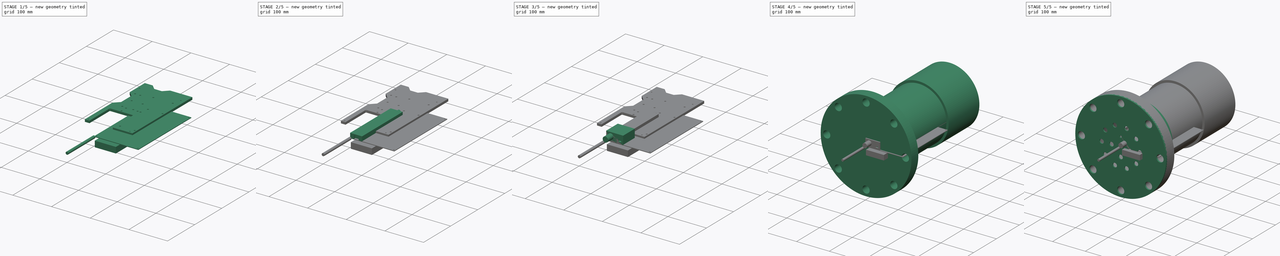
[diagram: build sequence overview — one tinted view per stage of 5, left to right]
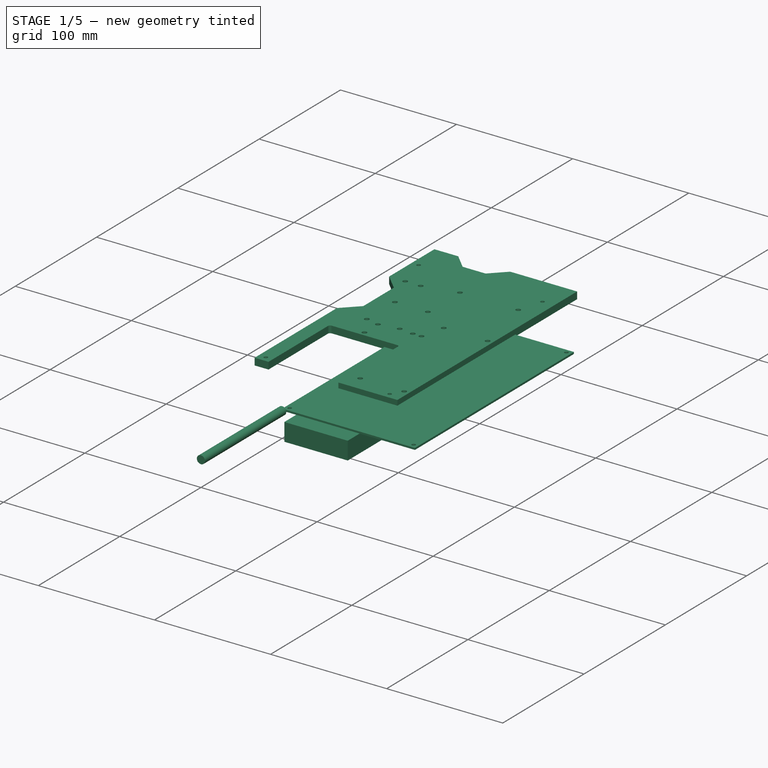
[diagram: stage 1 of 5 — iso view after this stage's code; geometry added in this stage tinted green]
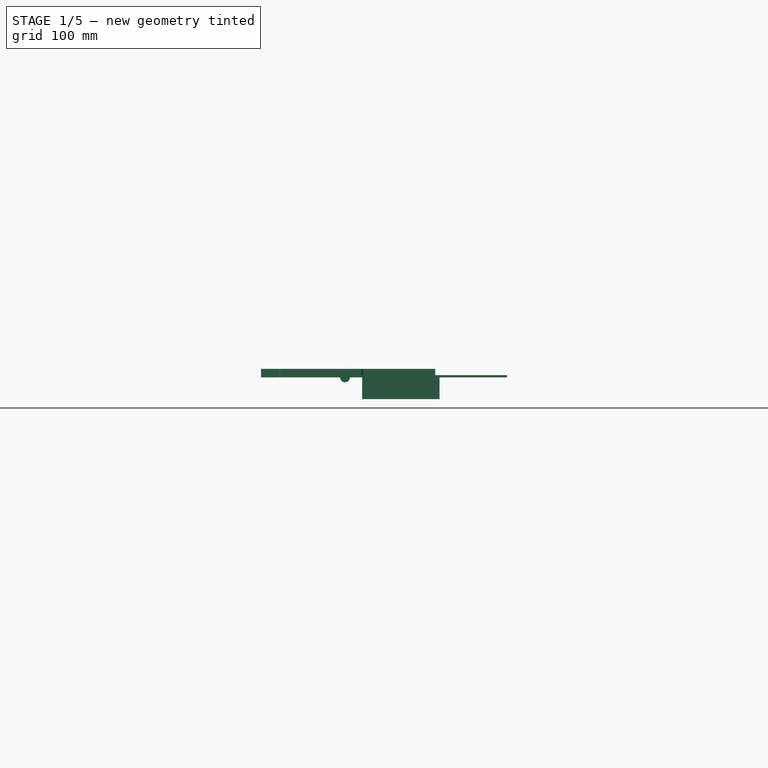
[diagram: stage 1 of 5 — front view after this stage's code; geometry added in this stage tinted green]
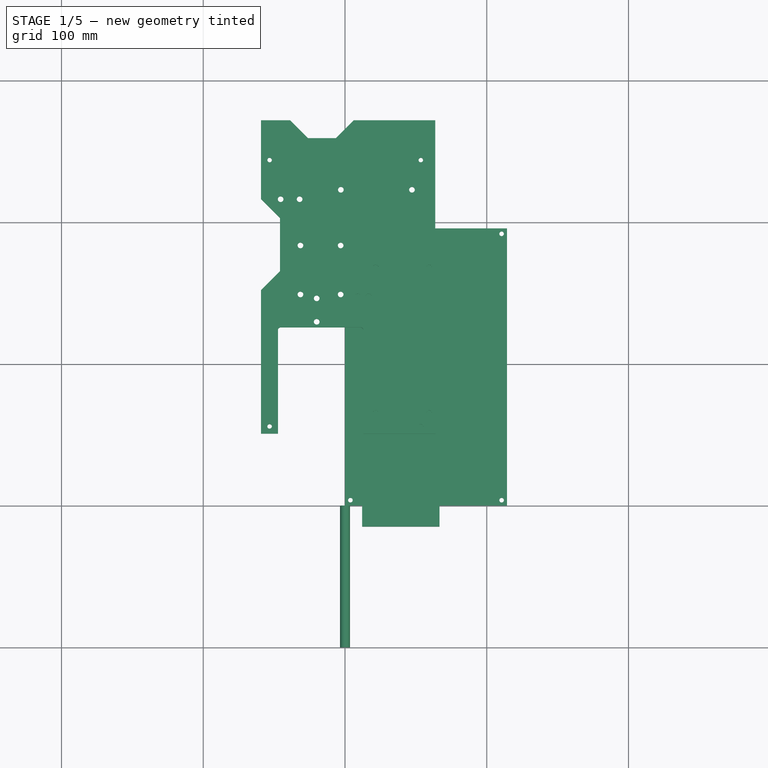
[diagram: stage 1 of 5 — top view after this stage's code; geometry added in this stage tinted green]
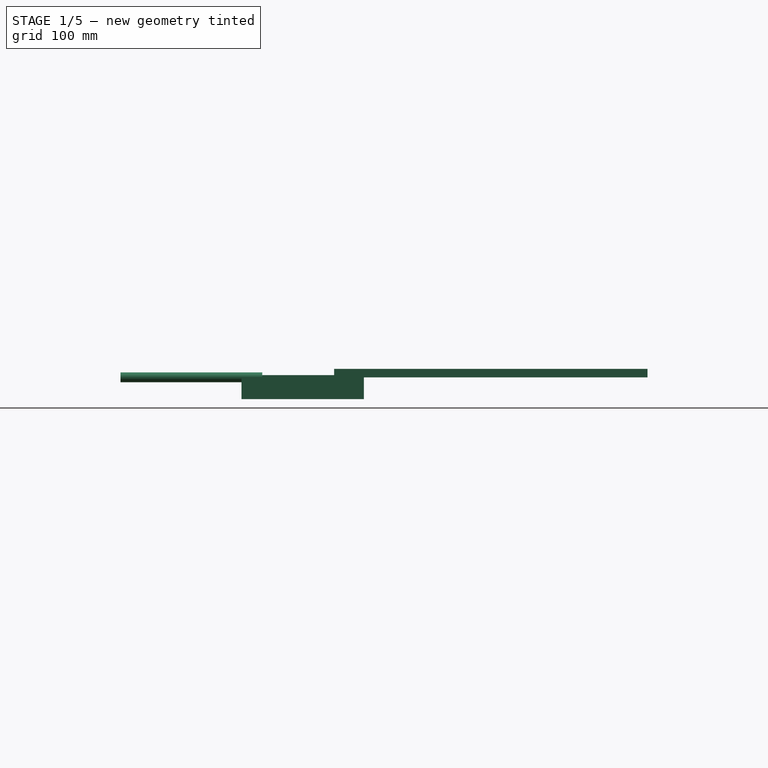
[diagram: stage 1 of 5 — right view after this stage's code; geometry added in this stage tinted green]
FCSTD DOCUMENT  (FreeCAD 0.17R8469 (Git))
Label: drybox_mockup
License: All rights reserved
LicenseURL: http://en.wikipedia.org/wiki/All_rights_reserved
objects: Sketcher::SketchObject×21, PartDesign::Pad×16, PartDesign::Body×12, Part::AttachableObjectPython×10, App::Part×10, PartDesign::Pocket×5, Part::Feature×1, App::DocumentObjectGroup×1
note: 86 computed .brp shape members not serialized (recipe doc carries the construction recipe); baked Part::Feature solids carry a one-line shape summary decoded from their .brp

FEATURE [PartDesign::Body] Body008  label="Transceiver"
  Model = -> [Sketch015,Pad010,Sketch016,Pocket004,Sketch017,Pad011]
  Origin = -> Body008Origin
  Placement = pos=(25,37,-13.2) rot=(0,0,1;0rad)
  Tip = -> Pad011
FEATURE [Sketcher::SketchObject] Sketch018
  MapMode = 5
  Placement = pos=(0,0,0) rot=(1,0,0;1.5708rad)
  Support = -> [XZ_Plane017]
  sketch-geometry (1):
    g0: Circle CenterX=0 CenterY=0 CenterZ=0 NormalX=0 NormalY=0 NormalZ=1 Radius=3.5
  constraints (2):
    c: Coincident(g0,g-1)
    c: Radius(g0) = 3.5
FEATURE [PartDesign::Pad] Pad012
  Length = 100
  Length2 = 100
  Placement = pos=(0,0,0) rot=(1,0,0;1.5708rad)
  Profile = -> Sketch018
  Type = 0
FEATURE [PartDesign::Body] Body009  label="Antenna001"
  Model = -> [Sketch018,Pad012]
  Origin = -> Body009Origin
  Placement = pos=(44,197,-7) rot=(0,0,-1;1.5708rad)
  Tip = -> Pad012
FEATURE [App::Part] Part007  label="Part Wifi"
  Group = -> [Body008,Body009]
  License = CC BY 3.0
  LicenseURL = http://creativecommons.org/licenses/by/3.0/
  Origin = -> Part007Origin
  Placement = pos=(0,-5,14) rot=(0,0,1;0rad)
FEATURE [Sketcher::SketchObject] Sketch019
  MapMode = 5
  Support = -> [XY_Plane019]
  sketch-geometry (12):
    g0: LineSegment StartX=0 StartY=0 StartZ=0 EndX=114.3 EndY=0 EndZ=0
    g1: LineSegment StartX=114.3 StartY=0 StartZ=0 EndX=114.3 EndY=195.58 EndZ=0
    g2: LineSegment StartX=114.3 StartY=195.58 StartZ=0 EndX=0 EndY=195.58 EndZ=0
    g3: LineSegment StartX=0 StartY=195.58 StartZ=0 EndX=0 EndY=0 EndZ=0
    g4: Circle CenterX=3.81 CenterY=3.81 CenterZ=0 NormalX=0 NormalY=0 NormalZ=1 Radius=1.6
    g5: Circle CenterX=3.81 CenterY=191.77 CenterZ=0 NormalX=0 NormalY=0 NormalZ=1 Radius=1.6
    g6: Circle CenterX=110.49 CenterY=191.77 CenterZ=0 NormalX=0 NormalY=0 NormalZ=1 Radius=1.6
    g7: Circle CenterX=110.49 CenterY=3.81 CenterZ=0 NormalX=0 NormalY=0 NormalZ=1 Radius=1.6
    g8: LineSegment [constr] StartX=3.81 StartY=3.81 StartZ=0 EndX=110.49 EndY=3.81 EndZ=0
    g9: LineSegment [constr] StartX=110.49 StartY=3.81 StartZ=0 EndX=110.49 EndY=191.77 EndZ=0
    g10: LineSegment [constr] StartX=110.49 StartY=191.77 StartZ=0 EndX=3.81 EndY=191.77 EndZ=0
    g11: LineSegment [constr] StartX=3.81 StartY=191.77 StartZ=0 EndX=3.81 EndY=3.81 EndZ=0
  constraints (31):
    c: Coincident(g0,g1)
    c: Coincident(g1,g2)
    c: Coincident(g2,g3)
    c: Coincident(g3,g0)
    c: Horizontal(g0)
    c: Horizontal(g2)
    c: Vertical(g1)
    c: Vertical(g3)
    c: Coincident(g0,g-1)
    c: DistanceX(g0,g0) = 114.3
    c: DistanceY(g3,g3) = 195.58
    c: Equal(g4,g5)
    c: Equal(g5,g6)
    c: Equal(g6,g7)
    c: Radius(g5) = 1.6
    c: Coincident(g8,g9)
    c: Coincident(g9,g10)
    c: Coincident(g10,g11)
    c: Coincident(g11,g8)
    c: Horizontal(g8)
    c: Horizontal(g10)
    c: Vertical(g9)
    c: Vertical(g11)
    c: Coincident(g6,g9)
    c: Coincident(g10,g5)
    c: Coincident(g4,g8)
    c: Coincident(g7,g8)
    c: DistanceX(g8,g8) = 106.68
    c: DistanceY(g11,g11) = 187.96
    c: DistanceY(g-1,g4) = 3.81
    c: DistanceX(g-1,g4) = 3.81
FEATURE [PartDesign::Pad] Pad013
  Length = 1.57
  Length2 = 100
  Profile = -> Sketch019
  Type = 0
FEATURE [Sketcher::SketchObject] Sketch020
  MapMode = 5
  Placement = pos=(0,0,0) rot=(1,0,0;3.14159rad)
  Support = -> [Pad013]
  sketch-geometry (4):
    g0: LineSegment StartX=12.06 StartY=14.61 StartZ=0 EndX=66.67 EndY=14.61 EndZ=0
    g1: LineSegment StartX=66.67 StartY=14.61 StartZ=0 EndX=66.67 EndY=-71.75 EndZ=0
    g2: LineSegment StartX=66.67 StartY=-71.75 StartZ=0 EndX=12.06 EndY=-71.75 EndZ=0
    g3: LineSegment StartX=12.06 StartY=-71.75 StartZ=0 EndX=12.06 EndY=14.61 EndZ=0
  constraints (12):
    c: Coincident(g0,g1)
    c: Coincident(g1,g2)
    c: Coincident(g2,g3)
    c: Coincident(g3,g0)
    c: Horizontal(g0)
    c: Horizontal(g2)
    c: Vertical(g1)
    c: Vertical(g3)
    c: DistanceX(g-1,g0) = 12.06
    c: DistanceX(g0,g0) = 54.61
    c: DistanceY(g1,g1) = 86.36
    c: DistanceY(g-1,g0) = 14.61
FEATURE [PartDesign::Pad] Pad014
  BaseFeature = -> Pad013
  Length = 15.4
  Length2 = 100
  Profile = -> Sketch020
  Type = 0
FEATURE [PartDesign::Body] Body010
  Model = -> [Sketch019,Pad013,Sketch020,Pad014]
  Origin = -> Body010Origin
  Placement = pos=(-57,52,11) rot=(0,0,1;0rad)
  Tip = -> Pad014
FEATURE [App::Part] Part008  label="Part Control board"
  Group = -> [Body010]
  License = CC BY 3.0
  LicenseURL = http://creativecommons.org/licenses/by/3.0/
  Origin = -> Part008Origin
  Placement = pos=(0,-5,14) rot=(0,0,1;0rad)
FEATURE [Sketcher::SketchObject] Sketch021
  MapMode = 5
  Support = -> [XY_Plane021]
  sketch-geometry (54):
    g0: LineSegment StartX=63.7 StartY=271.81 StartZ=0 EndX=63.7 EndY=50.68 EndZ=0
    g1: Circle CenterX=53.49 CenterY=55.81 CenterZ=0 NormalX=0 NormalY=0 NormalZ=1 Radius=1.6
    g2: Circle CenterX=53.49 CenterY=243.77 CenterZ=0 NormalX=0 NormalY=0 NormalZ=1 Radius=1.6
    g3: Circle CenterX=-53.19 CenterY=243.77 CenterZ=0 NormalX=0 NormalY=0 NormalZ=1 Radius=1.6
    g4: Circle CenterX=-53.19 CenterY=55.81 CenterZ=0 NormalX=0 NormalY=0 NormalZ=1 Radius=1.6
    g5: LineSegment [constr] StartX=-53.19 StartY=243.77 StartZ=0 EndX=53.49 EndY=243.77 EndZ=0
    g6: LineSegment [constr] StartX=53.49 StartY=243.77 StartZ=0 EndX=53.49 EndY=55.81 EndZ=0
    g7: LineSegment [constr] StartX=53.49 StartY=55.81 StartZ=0 EndX=-53.19 EndY=55.81 EndZ=0
    g8: LineSegment [constr] StartX=-53.19 StartY=55.81 StartZ=0 EndX=-53.19 EndY=243.77 EndZ=0
    g9: LineSegment StartX=-59.26 StartY=50.68 StartZ=0 EndX=-47.2873 EndY=50.68 EndZ=0
    g10: LineSegment StartX=-47.2873 StartY=50.68 StartZ=0 EndX=-47.2873 EndY=123.707 EndZ=0
    g11: LineSegment StartX=-45.2873 StartY=125.707 StartZ=0 EndX=10.9048 EndY=125.707 EndZ=0
    g12: LineSegment StartX=12.9048 StartY=123.707 StartZ=0 EndX=12.9048 EndY=50.68 EndZ=0
    g13: LineSegment StartX=12.9048 StartY=50.68 StartZ=0 EndX=63.7 EndY=50.68 EndZ=0
    g14: Circle CenterX=21.5925 CenterY=167.877 CenterZ=0 NormalX=0 NormalY=0 NormalZ=1 Radius=2
    g15: Circle CenterX=21.5925 CenterY=65.1614 CenterZ=0 NormalX=0 NormalY=0 NormalZ=1 Radius=2
    g16: Circle CenterX=59.4124 CenterY=167.877 CenterZ=0 NormalX=0 NormalY=0 NormalZ=1 Radius=2
    g17: Circle CenterX=59.4124 CenterY=65.1614 CenterZ=0 NormalX=0 NormalY=0 NormalZ=1 Radius=2
    g18: LineSegment [constr] StartX=21.5925 StartY=167.877 StartZ=0 EndX=59.4124 EndY=167.877 EndZ=0
    g19: LineSegment [constr] StartX=59.4124 StartY=167.877 StartZ=0 EndX=59.4124 EndY=65.1614 EndZ=0
    g20: LineSegment [constr] StartX=59.4124 StartY=65.1614 StartZ=0 EndX=21.5925 EndY=65.1614 EndZ=0
    g21: LineSegment [constr] StartX=21.5925 StartY=65.1614 StartZ=0 EndX=21.5925 EndY=167.877 EndZ=0
    g22: LineSegment [constr] StartX=-31.437 StartY=183.512 StartZ=0 EndX=-3.06064 EndY=183.512 EndZ=0
    g23: LineSegment [constr] StartX=-3.06064 StartY=183.512 StartZ=0 EndX=-3.06064 EndY=148.942 EndZ=0
    g24: LineSegment [constr] StartX=-3.06064 StartY=148.942 StartZ=0 EndX=-31.437 EndY=148.942 EndZ=0
    g25: LineSegment [constr] StartX=-31.437 StartY=148.942 StartZ=0 EndX=-31.437 EndY=183.512 EndZ=0
    g26: Circle CenterX=-31.437 CenterY=183.512 CenterZ=0 NormalX=0 NormalY=0 NormalZ=1 Radius=2
    g27: Circle CenterX=-3.06064 CenterY=183.512 CenterZ=0 NormalX=0 NormalY=0 NormalZ=1 Radius=2
    g28: Circle CenterX=-3.06064 CenterY=148.942 CenterZ=0 NormalX=0 NormalY=0 NormalZ=1 Radius=2
    g29: Circle CenterX=-31.437 CenterY=148.942 CenterZ=0 NormalX=0 NormalY=0 NormalZ=1 Radius=2
    g30: LineSegment [constr] StartX=-2.92612 StartY=222.808 StartZ=0 EndX=47.258 EndY=222.808 EndZ=0
    g31: Circle CenterX=-2.92612 CenterY=222.808 CenterZ=0 NormalX=0 NormalY=0 NormalZ=1 Radius=2
    g32: Circle CenterX=47.258 CenterY=222.808 CenterZ=0 NormalX=0 NormalY=0 NormalZ=1 Radius=2
    g33: LineSegment [constr] StartX=-19.9631 StartY=146.166 StartZ=0 EndX=-19.9631 EndY=129.655 EndZ=0
    g34: Circle CenterX=-19.9631 CenterY=146.166 CenterZ=0 NormalX=0 NormalY=0 NormalZ=1 Radius=2
    g35: Circle CenterX=-19.9631 CenterY=129.655 CenterZ=0 NormalX=0 NormalY=0 NormalZ=1 Radius=2
    g36: Circle CenterX=9.14011 CenterY=147.607 CenterZ=0 NormalX=0 NormalY=0 NormalZ=1 Radius=2
    g37: LineSegment [constr] StartX=9.14011 StartY=147.607 StartZ=0 EndX=16.5748 EndY=147.607 EndZ=0
    g38: Circle CenterX=16.5748 CenterY=147.607 CenterZ=0 NormalX=0 NormalY=0 NormalZ=1 Radius=2
    g39: LineSegment [constr] StartX=-45.4125 StartY=216.132 StartZ=0 EndX=-32.0166 EndY=216.132 EndZ=0
    g40: Circle CenterX=-45.4125 CenterY=216.132 CenterZ=0 NormalX=0 NormalY=0 NormalZ=1 Radius=2
    g41: Circle CenterX=-32.0166 CenterY=216.132 CenterZ=0 NormalX=0 NormalY=0 NormalZ=1 Radius=2
    g42: LineSegment StartX=-59.26 StartY=216.21 StartZ=0 EndX=-45.8775 EndY=202.827 EndZ=0
    g43: LineSegment StartX=-45.8775 StartY=202.827 StartZ=0 EndX=-45.8775 EndY=165.336 EndZ=0
    g44: LineSegment StartX=-45.8775 StartY=165.336 StartZ=0 EndX=-59.26 EndY=151.953 EndZ=0
    g45: LineSegment StartX=-59.26 StartY=271.81 StartZ=0 EndX=-59.26 EndY=216.21 EndZ=0
    g46: LineSegment StartX=-59.26 StartY=50.68 StartZ=0 EndX=-59.26 EndY=151.953 EndZ=0
    g47: ArcOfCircle CenterX=-45.2873 CenterY=123.707 CenterZ=0 NormalX=0 NormalY=0 NormalZ=1 Radius=2 StartAngle=1.5708 EndAngle=3.14159
    g48: ArcOfCircle CenterX=10.9048 CenterY=123.707 CenterZ=0 NormalX=0 NormalY=0 NormalZ=1 Radius=2 StartAngle=0 EndAngle=1.5708
    g49: LineSegment StartX=-59.26 StartY=271.81 StartZ=0 EndX=-38.7055 EndY=271.81 EndZ=0
    g50: LineSegment StartX=-38.7055 StartY=271.81 StartZ=0 EndX=-26.1599 EndY=259.264 EndZ=0
    g51: LineSegment StartX=-26.1599 StartY=259.264 StartZ=0 EndX=-6.43703 EndY=259.264 EndZ=0
    g52: LineSegment StartX=-6.43703 StartY=259.264 StartZ=0 EndX=6.10856 EndY=271.81 EndZ=0
    g53: LineSegment StartX=6.10856 StartY=271.81 StartZ=0 EndX=63.7 EndY=271.81 EndZ=0
  constraints (115):
    c: Vertical(g0)
    c: Coincident(g5,g6)
    c: Coincident(g6,g7)
    c: Coincident(g7,g8)
    c: Coincident(g8,g5)
    c: Horizontal(g5)
    c: Horizontal(g7)
    c: Vertical(g6)
    c: Vertical(g8)
    c: Coincident(g5,g3)
    c: Coincident(g5,g2)
    c: Coincident(g6,g1)
    c: Coincident(g4,g7)
    c: Equal(g3,g2)
    c: Equal(g2,g1)
    c: Equal(g1,g4)
    c: Radius(g4) = 1.6
    c: DistanceX(g7,g7) = 106.68
    c: DistanceY(g8,g8) = 187.96
    c: Horizontal(g9)
    c: Coincident(g9,g10)
    c: Vertical(g10)
    c: Horizontal(g11)
    c: Vertical(g12)
    c: Coincident(g12,g13)
    c: Coincident(g13,g0)
    c: Horizontal(g13)
    c: PointOnObject(g12,g9)
    c: DistanceY(g-1,g1) = 55.81
    c: DistanceX(g-1,g1) = 53.49
    c: Coincident(g18,g19)
    c: Coincident(g19,g20)
    c: Coincident(g20,g21)
    c: Coincident(g21,g18)
    c: Horizontal(g18)
    c: Horizontal(g20)
    c: Vertical(g19)
    c: Vertical(g21)
    c: Coincident(g19,g17)
    c: Coincident(g15,g20)
    c: Coincident(g14,g18)
    c: Coincident(g16,g18)
    c: Equal(g14,g15)
    c: Equal(g15,g16)
    c: Equal(g16,g17)
    c: Radius(g16) = 2
    c: Coincident(g22,g23)
    c: Coincident(g23,g24)
    c: Coincident(g24,g25)
    c: Coincident(g25,g22)
    c: Horizontal(g22)
    c: Horizontal(g24)
    c: Vertical(g23)
    c: Vertical(g25)
    c: Coincident(g26,g22)
    c: Coincident(g27,g22)
    c: Coincident(g28,g23)
    c: Coincident(g29,g24)
    c: Equal(g29,g28)
    c: Equal(g28,g27)
    c: Equal(g27,g26)
    c: Radius(g26) = 2
    c: Horizontal(g30)
    c: Coincident(g31,g30)
    c: Coincident(g32,g30)
    c: Equal(g32,g31)
    c: Radius(g31) = 2
    c: Vertical(g33)
    c: Coincident(g34,g33)
    c: Coincident(g35,g33)
    c: Equal(g35,g34)
    c: Radius(g35) = 2
    c: Coincident(g37,g36)
    c: Coincident(g38,g37)
    c: Equal(g38,g36)
    c: Radius(g36) = 2
    c: Horizontal(g37)
    c: Horizontal(g39)
    c: Coincident(g40,g39)
    c: Coincident(g41,g39)
    c: Equal(g40,g41)
    c: Radius(g40) = 2
    c: Coincident(g42,g43)
    c: Vertical(g43)
    c: Coincident(g43,g44)
    c: Angle(g43,g44) = 2.35619
    c: Angle(g42,g43) = 2.35619
    c: Vertical(g45)
    c: Coincident(g46,g9)
    c: Vertical(g46)
    c: Coincident(g44,g46)
    c: Coincident(g42,g45)
    c: PointOnObject(g44,g45)
    c: Tangent(g10,g47) = 1.5708
    c: Tangent(g11,g47) = 1.5708
    c: Tangent(g11,g48) = 1.5708
    c: Tangent(g12,g48) = 1.5708
    c: Equal(g48,g47)
    c: Radius(g47) = 2
    c: DistanceX(g9,g0) = 122.96
    c: DistanceX(g9,g-1) = 59.26
    c: Coincident(g45,g49)
    c: Horizontal(g49)
    c: Coincident(g49,g50)
    c: Coincident(g50,g51)
    c: Horizontal(g51)
    c: Coincident(g51,g52)
    c: Coincident(g52,g53)
    c: Coincident(g53,g0)
    c: Horizontal(g53)
    c: PointOnObject(g52,g49)
    c: Angle(g51,g50) = 2.35619
    c: Angle(g52,g51) = 2.35619
    c: DistanceY(g9,g45) = 221.13
    c: DistanceY(g-1,g9) = 50.68
FEATURE [PartDesign::Pad] Pad015
  Length = 6
  Length2 = 100
  Profile = -> Sketch021
  Type = 0
FEATURE [PartDesign::Body] Body011
  Model = -> [Sketch021,Pad015]
  Origin = -> Body011Origin
  Tip = -> Pad015
FEATURE [App::Part] Part009  label="Part Carrier plate"
  Group = -> [Body011]
  License = CC BY 3.0
  LicenseURL = http://creativecommons.org/licenses/by/3.0/
  Origin = -> Part009Origin
  Placement = pos=(0,-5,14) rot=(0,0,1;0rad)
FEATURE [App::DocumentObjectGroup] Group
FEATURE [App::Part] Part005  label="Part AIS receiver"
  Group = -> [Body005,Group]
  License = CC BY 3.0
  LicenseURL = http://creativecommons.org/licenses/by/3.0/
  Origin = -> Part005Origin
  Placement = pos=(0,-5,14) rot=(0,0,1;0rad)
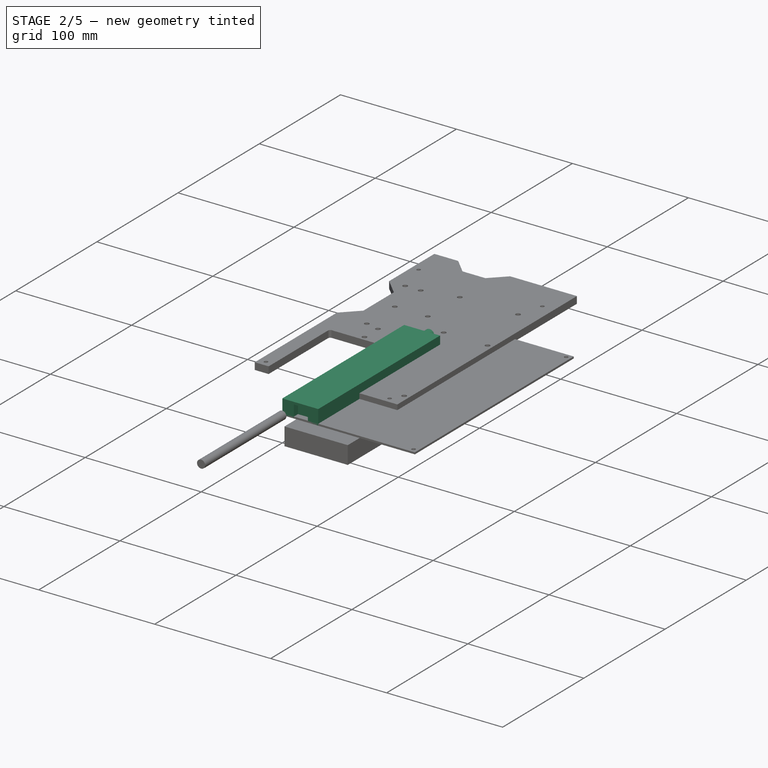
[diagram: stage 2 of 5 — iso view after this stage's code; geometry added in this stage tinted green]
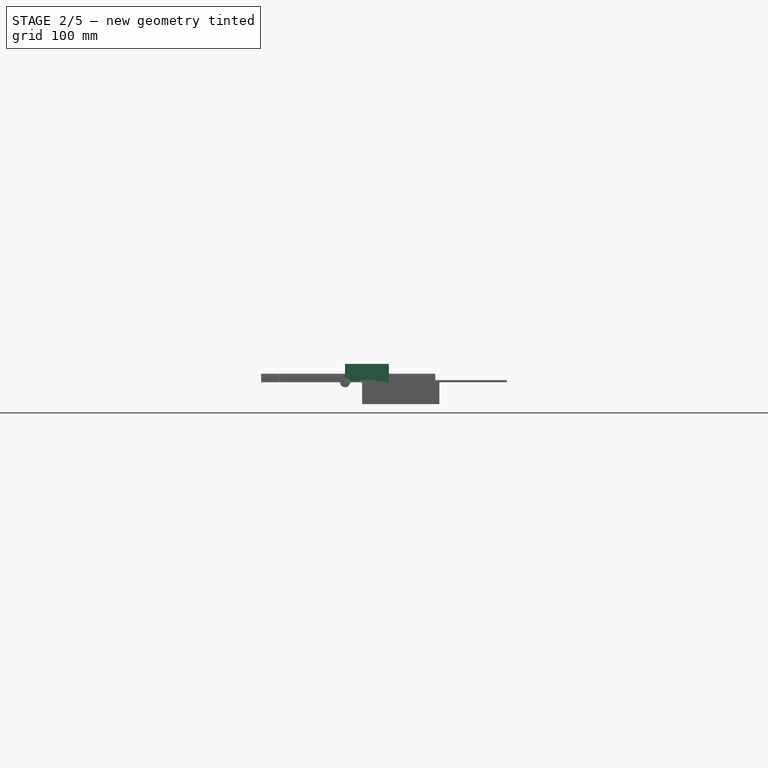
[diagram: stage 2 of 5 — front view after this stage's code; geometry added in this stage tinted green]
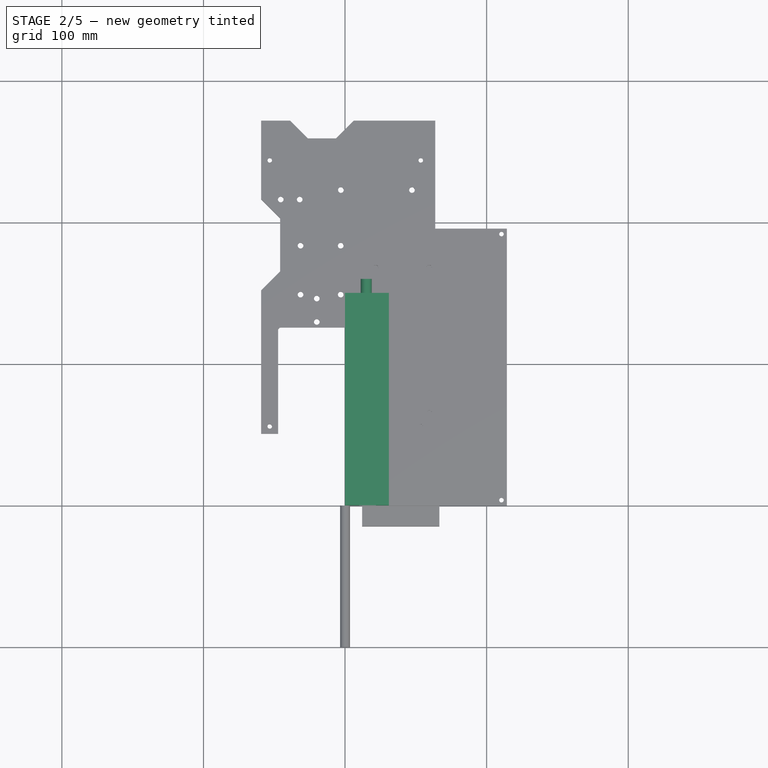
[diagram: stage 2 of 5 — top view after this stage's code; geometry added in this stage tinted green]
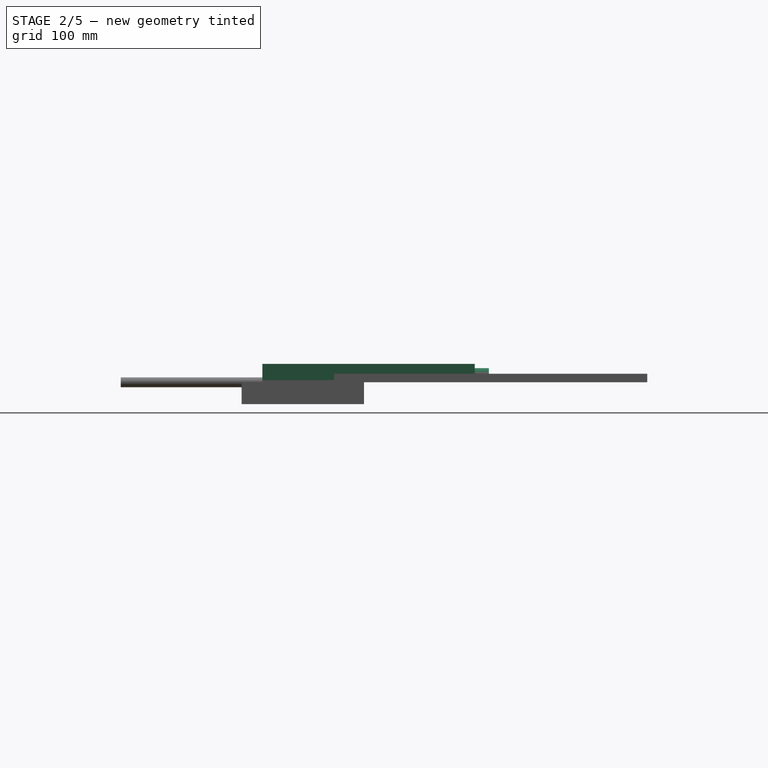
[diagram: stage 2 of 5 — right view after this stage's code; geometry added in this stage tinted green]
FEATURE [PartDesign::Body] Body006  label="Receiver"
  Model = -> [Sketch012,Pad008,Sketch013,Pocket003]
  Origin = -> Body006Origin
  Placement = pos=(5,153,-14.2) rot=(0,0,1;1.5708rad)
  Tip = -> Pocket003
FEATURE [Sketcher::SketchObject] Sketch014
  MapMode = 5
  Support = -> [XY_Plane014]
  sketch-geometry (4):
    g0: LineSegment StartX=0 StartY=0 StartZ=0 EndX=10 EndY=0 EndZ=0
    g1: LineSegment StartX=10 StartY=0 StartZ=0 EndX=10 EndY=52.5 EndZ=0
    g2: LineSegment StartX=10 StartY=52.5 StartZ=0 EndX=0 EndY=52.5 EndZ=0
    g3: LineSegment StartX=0 StartY=52.5 StartZ=0 EndX=0 EndY=0 EndZ=0
  constraints (11):
    c: Coincident(g0,g1)
    c: Coincident(g1,g2)
    c: Coincident(g2,g3)
    c: Coincident(g3,g0)
    c: Horizontal(g0)
    c: Horizontal(g2)
    c: Vertical(g1)
    c: Vertical(g3)
    c: Coincident(g0,g-1)
    c: DistanceY(g1,g1) = 52.5
    c: DistanceX(g0,g0) = 10
FEATURE [PartDesign::Pad] Pad009
  Length = 6
  Length2 = 100
  Profile = -> Sketch014
  Type = 0
FEATURE [PartDesign::Body] Body007  label="Antenna"
  Model = -> [Sketch014,Pad009]
  Origin = -> Body007Origin
  Placement = pos=(-3,133,-7.2) rot=(0,0,1;1.5708rad)
  Tip = -> Pad009
FEATURE [App::Part] Part006  label="Part RC receiver"
  Group = -> [Body006,Body007]
  License = CC BY 3.0
  LicenseURL = http://creativecommons.org/licenses/by/3.0/
  Origin = -> Part006Origin
  Placement = pos=(0,-5,14) rot=(0,0,1;0rad)
FEATURE [Sketcher::SketchObject] Sketch015
  MapMode = 5
  Support = -> [XY_Plane016]
  sketch-geometry (4):
    g0: LineSegment StartX=0 StartY=0 StartZ=0 EndX=31 EndY=0 EndZ=0
    g1: LineSegment StartX=31 StartY=0 StartZ=0 EndX=31 EndY=150 EndZ=0
    g2: LineSegment StartX=31 StartY=150 StartZ=0 EndX=0 EndY=150 EndZ=0
    g3: LineSegment StartX=0 StartY=150 StartZ=0 EndX=0 EndY=0 EndZ=0
  constraints (11):
    c: Coincident(g0,g1)
    c: Coincident(g1,g2)
    c: Coincident(g2,g3)
    c: Coincident(g3,g0)
    c: Horizontal(g0)
    c: Horizontal(g2)
    c: Vertical(g1)
    c: Vertical(g3)
    c: Coincident(g0,g-1)
    c: DistanceY(g3,g3) = 150
    c: DistanceX(g0,g0) = 31
FEATURE [PartDesign::Pad] Pad010
  Length = 13
  Length2 = 100
  Profile = -> Sketch015
  Type = 0
FEATURE [Sketcher::SketchObject] Sketch016
  MapMode = 5
  Placement = pos=(0,0,0) rot=(1,0,0;1.5708rad)
  Support = -> [Pad010]
  sketch-geometry (4):
    g0: LineSegment StartX=10 StartY=11 StartZ=0 EndX=22 EndY=11 EndZ=0
    g1: LineSegment StartX=22 StartY=11 StartZ=0 EndX=22 EndY=1 EndZ=0
    g2: LineSegment StartX=22 StartY=1 StartZ=0 EndX=10 EndY=1 EndZ=0
    g3: LineSegment StartX=10 StartY=1 StartZ=0 EndX=10 EndY=11 EndZ=0
  constraints (12):
    c: Coincident(g0,g1)
    c: Coincident(g1,g2)
    c: Coincident(g2,g3)
    c: Coincident(g3,g0)
    c: Horizontal(g0)
    c: Horizontal(g2)
    c: Vertical(g1)
    c: Vertical(g3)
    c: DistanceX(g0,g0) = 12
    c: DistanceY(g3,g3) = 10
    c: DistanceX(g-1,g2) = 10
    c: DistanceY(g-1,g2) = 1
FEATURE [PartDesign::Pocket] Pocket004
  BaseFeature = -> Pad010
  Length = 5
  Profile = -> Sketch016
  Type = 0
FEATURE [Sketcher::SketchObject] Sketch017
  MapMode = 5
  Placement = pos=(0,150,0) rot=(0,0.707107,0.707107;3.14159rad)
  Support = -> [Pocket004]
  sketch-geometry (1):
    g0: Circle CenterX=-15 CenterY=6 CenterZ=0 NormalX=0 NormalY=0 NormalZ=1 Radius=4
  constraints (3):
    c: DistanceX(g0,g-1) = 15
    c: DistanceY(g-1,g0) = 6
    c: Radius(g0) = 4
FEATURE [PartDesign::Pad] Pad011
  BaseFeature = -> Pocket004
  Length = 10
  Length2 = 100
  Profile = -> Sketch017
  Type = 0
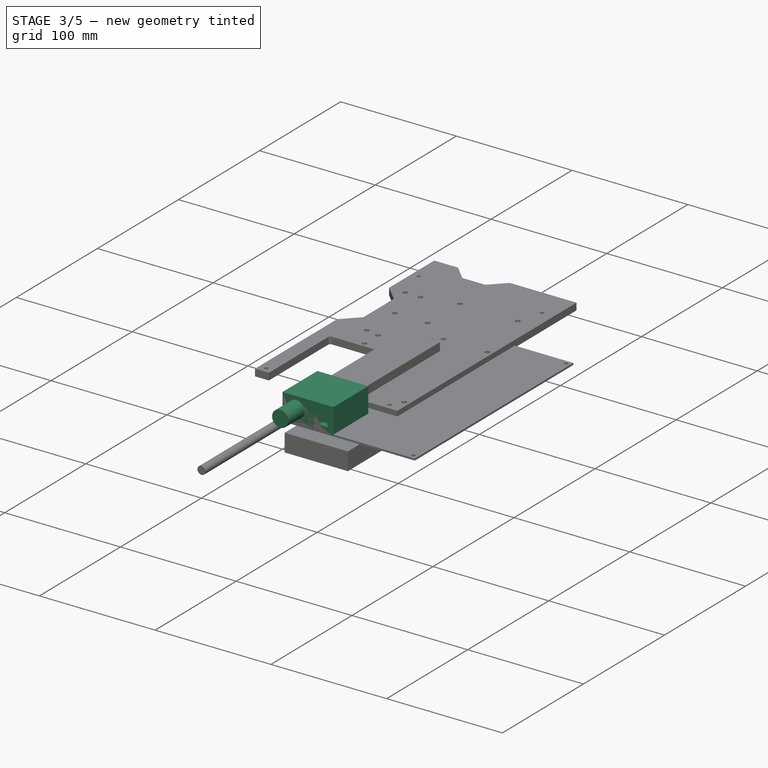
[diagram: stage 3 of 5 — iso view after this stage's code; geometry added in this stage tinted green]
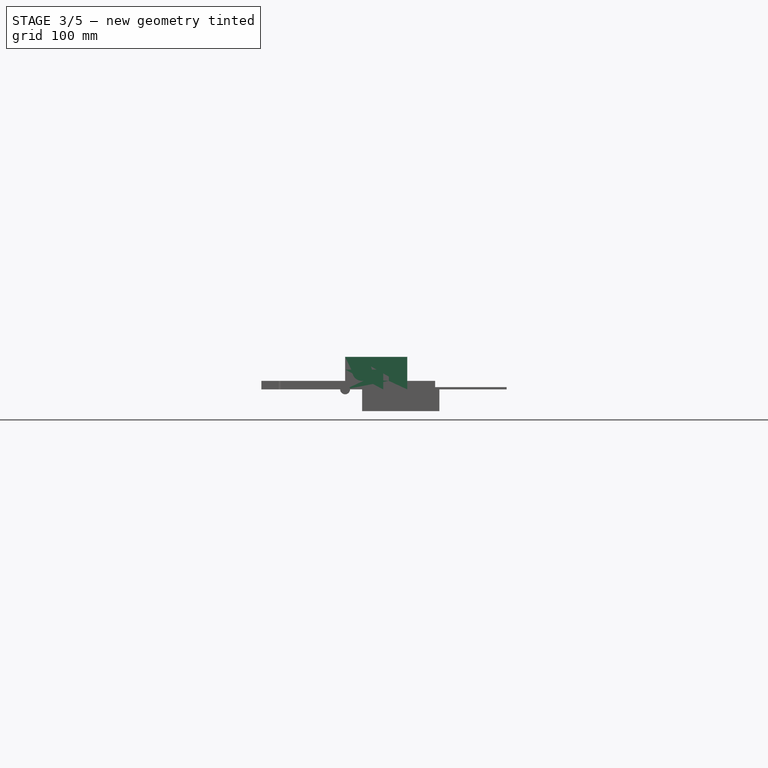
[diagram: stage 3 of 5 — front view after this stage's code; geometry added in this stage tinted green]
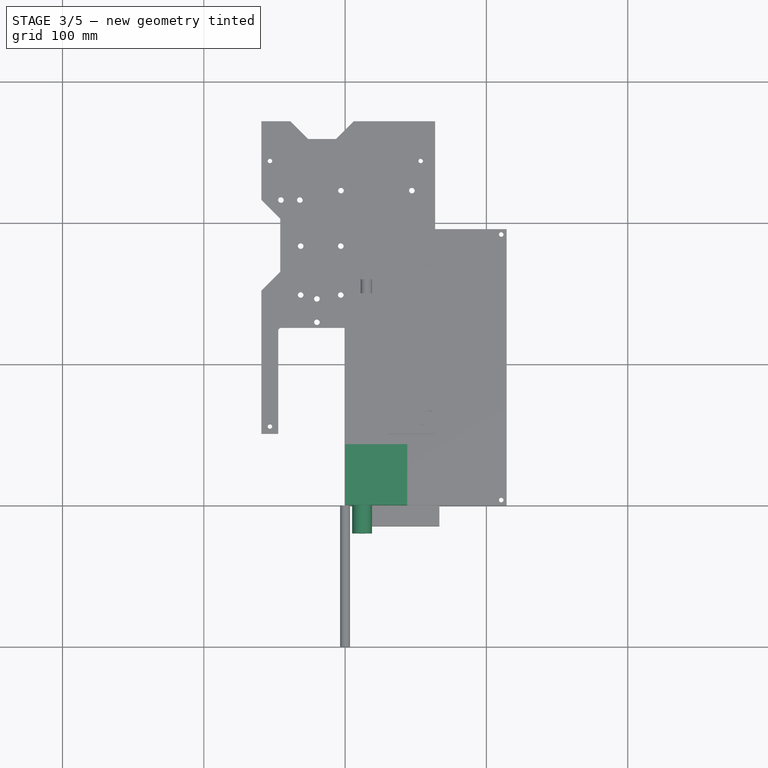
[diagram: stage 3 of 5 — top view after this stage's code; geometry added in this stage tinted green]
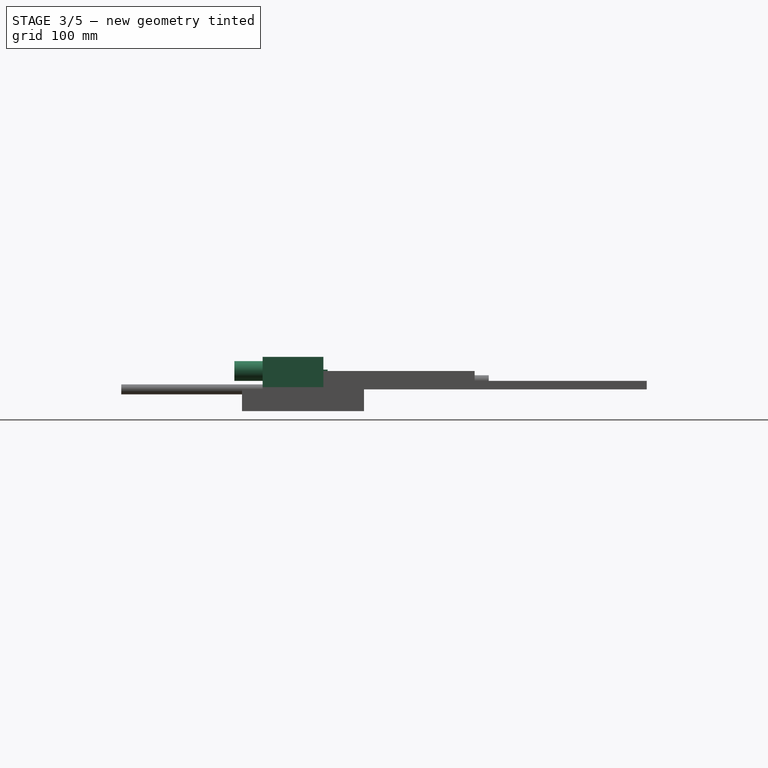
[diagram: stage 3 of 5 — right view after this stage's code; geometry added in this stage tinted green]
FEATURE [PartDesign::Body] Body004
  Model = -> [Sketch007,Pad005,Sketch008,Pocket001]
  Origin = -> Body004Origin
  Tip = -> Pocket001
FEATURE [App::Part] Part004  label="Part End cap"
  Group = -> [Body004]
  License = CC BY 3.0
  LicenseURL = http://creativecommons.org/licenses/by/3.0/
  Origin = -> Part004Origin
  Placement = pos=(0,321,0) rot=(0,0,1;3.14159rad)
FEATURE [Sketcher::SketchObject] Sketch009
  MapMode = 5
  Support = -> [XY_Plane011]
  sketch-geometry (4):
    g0: LineSegment StartX=0 StartY=0 StartZ=0 EndX=44 EndY=0 EndZ=0
    g1: LineSegment StartX=44 StartY=0 StartZ=0 EndX=44 EndY=43 EndZ=0
    g2: LineSegment StartX=44 StartY=43 StartZ=0 EndX=0 EndY=43 EndZ=0
    g3: LineSegment StartX=0 StartY=43 StartZ=0 EndX=0 EndY=0 EndZ=0
  constraints (11):
    c: Coincident(g0,g1)
    c: Coincident(g1,g2)
    c: Coincident(g2,g3)
    c: Coincident(g3,g0)
    c: Horizontal(g0)
    c: Horizontal(g2)
    c: Vertical(g1)
    c: Vertical(g3)
    c: Coincident(g0,g-1)
    c: DistanceX(g2,g2) = 44
    c: DistanceY(g3,g3) = 43
FEATURE [PartDesign::Pad] Pad006
  Length = 23
  Length2 = 100
  Profile = -> Sketch009
  Type = 0
FEATURE [Sketcher::SketchObject] Sketch010
  MapMode = 5
  Placement = pos=(0,0,0) rot=(1,0,0;1.5708rad)
  Support = -> [Pad006]
  sketch-geometry (1):
    g0: Circle CenterX=12 CenterY=13 CenterZ=0 NormalX=0 NormalY=0 NormalZ=1 Radius=7
  constraints (3):
    c: DistanceY(g-1,g0) = 13
    c: DistanceX(g-1,g0) = 12
    c: Radius(g0) = 7
FEATURE [PartDesign::Pad] Pad007
  BaseFeature = -> Pad006
  Length = 20
  Length2 = 100
  Profile = -> Sketch010
  Type = 0
FEATURE [Sketcher::SketchObject] Sketch011
  MapMode = 5
  Placement = pos=(0,0,0) rot=(1,0,0;1.5708rad)
  Support = -> [Pad007]
  sketch-geometry (4):
    g0: LineSegment StartX=31 StartY=9 StartZ=0 EndX=39 EndY=9 EndZ=0
    g1: LineSegment StartX=39 StartY=9 StartZ=0 EndX=39 EndY=6 EndZ=0
    g2: LineSegment StartX=39 StartY=6 StartZ=0 EndX=31 EndY=6 EndZ=0
    g3: LineSegment StartX=31 StartY=6 StartZ=0 EndX=31 EndY=9 EndZ=0
  constraints (12):
    c: Coincident(g0,g1)
    c: Coincident(g1,g2)
    c: Coincident(g2,g3)
    c: Coincident(g3,g0)
    c: Horizontal(g0)
    c: Horizontal(g2)
    c: Vertical(g1)
    c: Vertical(g3)
    c: DistanceY(g1,g1) = 3
    c: DistanceX(g0,g0) = 8
    c: DistanceY(g-1,g2) = 6
    c: DistanceX(g-1,g2) = 31
FEATURE [PartDesign::Pocket] Pocket002
  BaseFeature = -> Pad007
  Length = 5
  Profile = -> Sketch011
  Type = 0
FEATURE [PartDesign::Body] Body005
  Model = -> [Sketch009,Pad006,Sketch010,Pad007,Sketch011,Pocket002]
  Origin = -> Body005Origin
  Placement = pos=(1,248,-23.2) rot=(0,0,-1;1.5708rad)
  Tip = -> Pocket002
FEATURE [Sketcher::SketchObject] Sketch012
  MapMode = 5
  Support = -> [XY_Plane013]
  sketch-geometry (4):
    g0: LineSegment StartX=0 StartY=0 StartZ=0 EndX=27 EndY=0 EndZ=0
    g1: LineSegment StartX=27 StartY=0 StartZ=0 EndX=27 EndY=46 EndZ=0
    g2: LineSegment StartX=27 StartY=46 StartZ=0 EndX=0 EndY=46 EndZ=0
    g3: LineSegment StartX=0 StartY=46 StartZ=0 EndX=0 EndY=0 EndZ=0
  constraints (11):
    c: Coincident(g0,g1)
    c: Coincident(g1,g2)
    c: Coincident(g2,g3)
    c: Coincident(g3,g0)
    c: Horizontal(g0)
    c: Horizontal(g2)
    c: Vertical(g1)
    c: Vertical(g3)
    c: Coincident(g0,g-1)
    c: DistanceX(g2,g2) = 27
    c: DistanceY(g3,g3) = 46
FEATURE [PartDesign::Pad] Pad008
  Length = 14
  Length2 = 100
  Profile = -> Sketch012
  Type = 0
FEATURE [Sketcher::SketchObject] Sketch013
  ExternalGeometry = -> [Pad008]
  MapMode = 5
  Placement = pos=(0,46,0) rot=(0,0.707107,0.707107;3.14159rad)
  Support = -> [Pad008]
  sketch-geometry (7):
    g0: LineSegment StartX=-25.4805 StartY=12.4805 StartZ=0 EndX=-1.5195 EndY=12.4805 EndZ=0
    g1: LineSegment StartX=-1.5195 StartY=12.4805 StartZ=0 EndX=-1.5195 EndY=1.5195 EndZ=0
    g2: LineSegment StartX=-1.5195 StartY=1.5195 StartZ=0 EndX=-25.4805 EndY=1.5195 EndZ=0
    g3: LineSegment StartX=-25.4805 StartY=1.5195 StartZ=0 EndX=-25.4805 EndY=12.4805 EndZ=0
    g4: LineSegment [constr] StartX=-25.4805 StartY=1.5195 StartZ=0 EndX=-27 EndY=0 EndZ=0
    g5: LineSegment [constr] StartX=-25.4805 StartY=12.4805 StartZ=0 EndX=-27 EndY=14 EndZ=0
    g6: LineSegment [constr] StartX=-1.5195 StartY=1.5195 StartZ=0 EndX=0 EndY=0 EndZ=0
  constraints (17):
    c: Coincident(g0,g1)
    c: Coincident(g1,g2)
    c: Coincident(g2,g3)
    c: Coincident(g3,g0)
    c: Horizontal(g0)
    c: Horizontal(g2)
    c: Vertical(g1)
    c: Vertical(g3)
    c: Coincident(g4,g2)
    c: Coincident(g4,g-3)
    c: Coincident(g5,g0)
    c: Coincident(g5,g-3)
    c: Coincident(g6,g1)
    c: Coincident(g6,g-1)
    c: Equal(g4,g5)
    c: Equal(g5,g6)
    c: Angle(g4,g-3) = 0.785398
FEATURE [PartDesign::Pocket] Pocket003
  BaseFeature = -> Pad008
  Length = 5
  Profile = -> Sketch013
  Type = 0
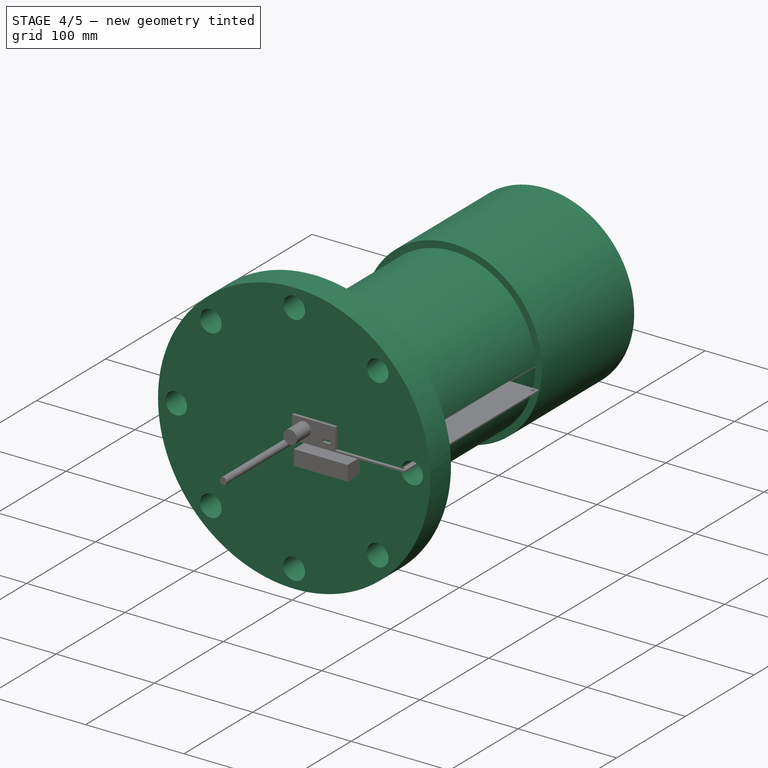
[diagram: stage 4 of 5 — iso view after this stage's code; geometry added in this stage tinted green]
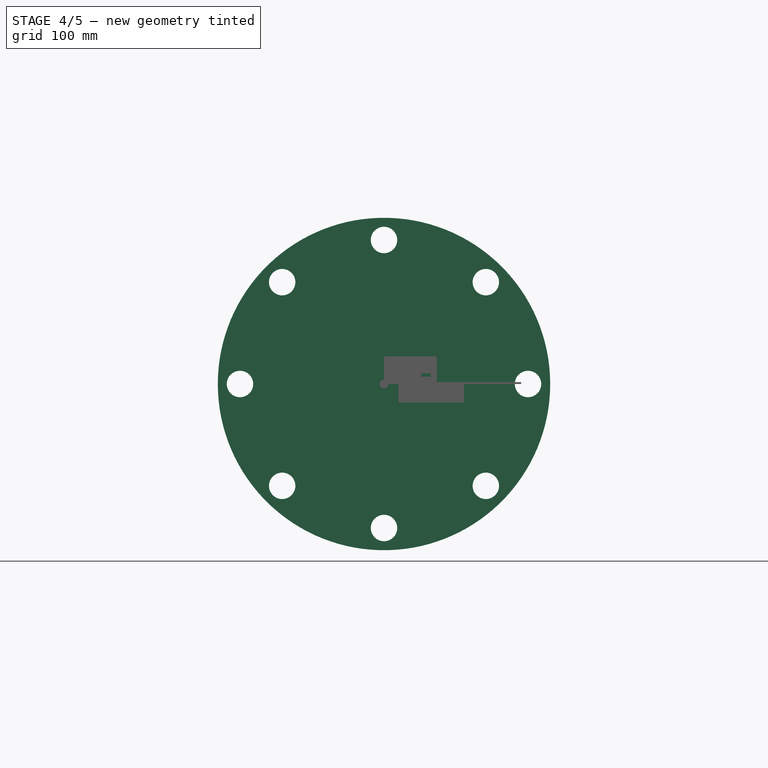
[diagram: stage 4 of 5 — front view after this stage's code; geometry added in this stage tinted green]
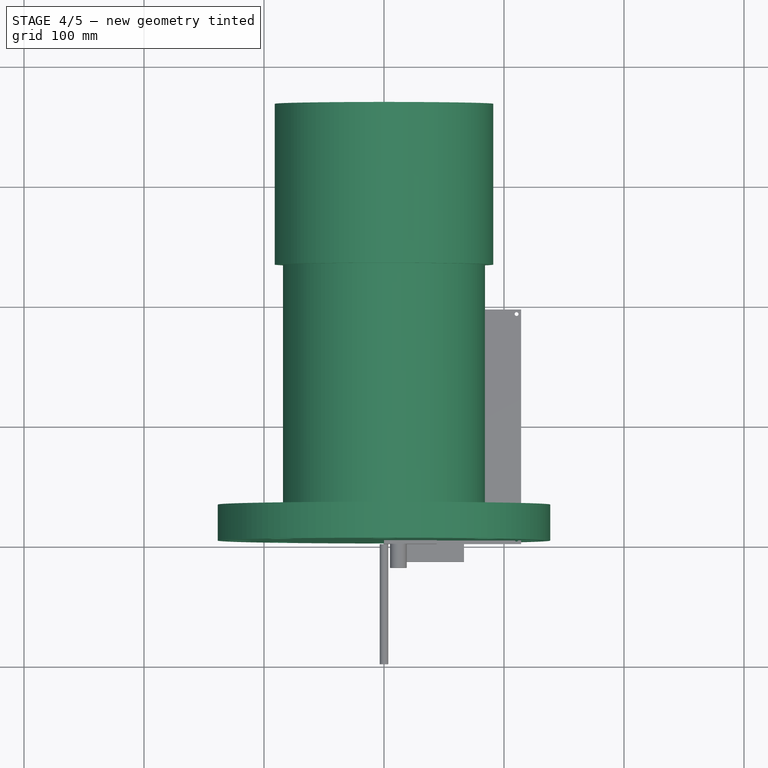
[diagram: stage 4 of 5 — top view after this stage's code; geometry added in this stage tinted green]
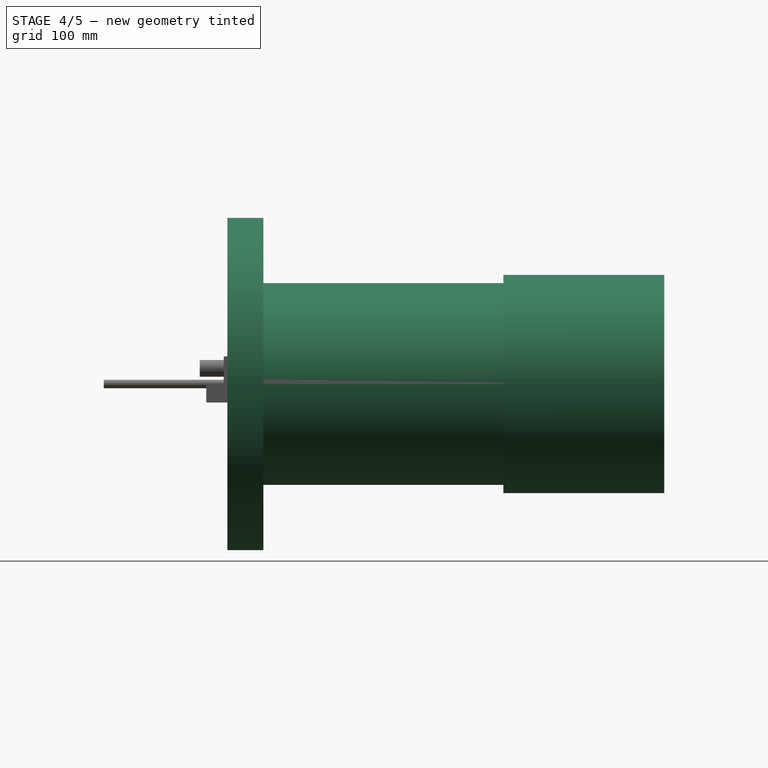
[diagram: stage 4 of 5 — right view after this stage's code; geometry added in this stage tinted green]
FEATURE [PartDesign::Body] Body001
  Model = -> [Sketch002,Pad001]
  Origin = -> Body001Origin
  Tip = -> Pad001
FEATURE [App::Part] Part001  label="Part Gasket"
  Group = -> [Body001]
  License = CC BY 3.0
  LicenseURL = http://creativecommons.org/licenses/by/3.0/
  Origin = -> Part001Origin
  Placement = pos=(0,339,0) rot=(0,0,1;0rad)
FEATURE [Sketcher::SketchObject] Sketch003
  MapMode = 5
  Placement = pos=(0,3,0) rot=(1,0,0;1.5708rad)
  Support = -> [XZ_Plane005]
  superPlacement = pos=(0,0,-3) rot=(0,0,1;0rad)
  sketch-geometry (18):
    g0: Circle CenterX=0 CenterY=0 CenterZ=0 NormalX=0 NormalY=0 NormalZ=1 Radius=138.5
    g1: LineSegment [constr] StartX=-120 StartY=0 StartZ=0 EndX=-84.8528 EndY=-84.8528 EndZ=0
    g2: LineSegment [constr] StartX=-84.8528 StartY=-84.8528 StartZ=0 EndX=0 EndY=-120 EndZ=0
    g3: LineSegment [constr] StartX=0 StartY=-120 StartZ=0 EndX=84.8528 EndY=-84.8528 EndZ=0
    g4: LineSegment [constr] StartX=84.8528 StartY=-84.8528 StartZ=0 EndX=120 EndY=0 EndZ=0
    g5: LineSegment [constr] StartX=120 StartY=0 StartZ=0 EndX=84.8528 EndY=84.8528 EndZ=0
    g6: LineSegment [constr] StartX=84.8528 StartY=84.8528 StartZ=0 EndX=0 EndY=120 EndZ=0
    g7: LineSegment [constr] StartX=0 StartY=120 StartZ=0 EndX=-84.8528 EndY=84.8528 EndZ=0
    g8: LineSegment [constr] StartX=-84.8528 StartY=84.8528 StartZ=0 EndX=-120 EndY=0 EndZ=0
    g9: Circle [constr] CenterX=0 CenterY=0 CenterZ=0 NormalX=0 NormalY=0 NormalZ=1 Radius=120
    g10: Circle CenterX=-120 CenterY=0 CenterZ=0 NormalX=0 NormalY=0 NormalZ=1 Radius=11
    g11: Circle CenterX=-84.8528 CenterY=84.8528 CenterZ=0 NormalX=0 NormalY=0 NormalZ=1 Radius=11
    g12: Circle CenterX=0 CenterY=120 CenterZ=0 NormalX=0 NormalY=0 NormalZ=1 Radius=11
    g13: Circle CenterX=84.8528 CenterY=84.8528 CenterZ=0 NormalX=0 NormalY=0 NormalZ=1 Radius=11
    g14: Circle CenterX=120 CenterY=0 CenterZ=0 NormalX=0 NormalY=0 NormalZ=1 Radius=11
    g15: Circle CenterX=84.8528 CenterY=-84.8528 CenterZ=0 NormalX=0 NormalY=0 NormalZ=1 Radius=11
    g16: Circle CenterX=0 CenterY=-120 CenterZ=0 NormalX=0 NormalY=0 NormalZ=1 Radius=11
    g17: Circle CenterX=-84.8528 CenterY=-84.8528 CenterZ=0 NormalX=0 NormalY=0 NormalZ=1 Radius=11
  constraints (38):
    c: Coincident(g0,g-1)
    c: Radius(g0) = 138.5
    c: Coincident(g1,g2)
    c: Coincident(g2,g3)
    c: Coincident(g3,g4)
    c: Coincident(g4,g5)
    c: Coincident(g5,g6)
    c: Coincident(g6,g7)
    c: Coincident(g7,g8)
    c: Coincident(g8,g1)
    c: Equal(g1, g2-g8) x7
    c: PointOnObject(g1,g9)
    c: PointOnObject(g2,g9)
    c: PointOnObject(g3,g9)
    c: PointOnObject(g4,g9)
    c: PointOnObject(g5,g9)
    c: PointOnObject(g6,g9)
    c: PointOnObject(g7,g9)
    c: PointOnObject(g8,g9)
    c: Coincident(g9,g-1)
    c: PointOnObject(g1,g-1)
    c: Radius(g9) = 120
    c: Coincident(g10,g1)
    c: Coincident(g11,g7)
    c: Coincident(g12,g6)
    c: Coincident(g13,g5)
    c: Coincident(g14,g4)
    c: Coincident(g15,g3)
    c: Coincident(g16,g2)
    c: Coincident(g17,g1)
    c: Equal(g17,g10)
    c: Equal(g10,g11)
    c: Equal(g11,g12)
    c: Equal(g12,g13)
    c: Equal(g13,g14)
    c: Equal(g14,g15)
    c: Equal(g15,g16)
    c: Radius(g10) = 11
FEATURE [PartDesign::Pad] Pad002
  Length = 30
  Length2 = 100
  Placement = pos=(0,0,0) rot=(1,0,0;1.5708rad)
  Profile = -> Sketch003
  Reversed = true
  Type = 0
FEATURE [PartDesign::Body] Body002
  Model = -> [Sketch003,Pad002,Sketch004,Pad003,Sketch005,Pocket]
  Origin = -> Body002Origin
  Tip = -> Pocket
FEATURE [App::Part] Part002  label="Part flange"
  Group = -> [Body002]
  License = CC BY 3.0
  LicenseURL = http://creativecommons.org/licenses/by/3.0/
  Origin = -> Part002Origin
  Placement = pos=(0,342,0) rot=(0,0,1;3.14159rad)
FEATURE [Sketcher::SketchObject] Sketch006
  MapMode = 5
  Placement = pos=(0,12,0) rot=(1,0,0;1.5708rad)
  Support = -> [XZ_Plane007]
  superPlacement = pos=(0,0,-12) rot=(0,0,1;0rad)
  sketch-geometry (2):
    g0: Circle CenterX=0 CenterY=0 CenterZ=0 NormalX=0 NormalY=0 NormalZ=1 Radius=84.1375
    g1: Circle CenterX=0 CenterY=0 CenterZ=0 NormalX=0 NormalY=0 NormalZ=1 Radius=77.0255
  constraints (5):
    c: PointOnObject(g0,g-2)
    c: Coincident(g0,g-1)
    c: Radius(g0) = 84.1375
    c: Coincident(g1,g-1)
    c: Radius(g1) = 77.0255
FEATURE [PartDesign::Pad] Pad004
  Length = 304.8
  Length2 = 100
  Placement = pos=(0,0,0) rot=(1,0,0;1.5708rad)
  Profile = -> Sketch006
  Reversed = true
  Type = 0
FEATURE [PartDesign::Body] Body003
  Model = -> [Sketch006,Pad004]
  Origin = -> Body003Origin
  Tip = -> Pad004
FEATURE [App::Part] Part003  label="Part PCV tube"
  Group = -> [Body003]
  License = CC BY 3.0
  LicenseURL = http://creativecommons.org/licenses/by/3.0/
  Origin = -> Part003Origin
FEATURE [Sketcher::SketchObject] Sketch007
  MapMode = 5
  Placement = pos=(0,233,0) rot=(1,0,0;1.5708rad)
  Support = -> [XZ_Plane009]
  superPlacement = pos=(0,0,-233) rot=(0,0,1;0rad)
  sketch-geometry (1):
    g0: Circle CenterX=0 CenterY=0 CenterZ=0 NormalX=0 NormalY=0 NormalZ=1 Radius=91
  constraints (2):
    c: Coincident(g0,g-1)
    c: Radius(g0) = 91
FEATURE [PartDesign::Pad] Pad005
  Length = 134
  Length2 = 100
  Placement = pos=(0,0,0) rot=(1,0,0;1.5708rad)
  Profile = -> Sketch007
  Reversed = true
  Type = 0
FEATURE [Sketcher::SketchObject] Sketch008
  ExternalGeometry = -> [Pad005]
  MapMode = 5
  Placement = pos=(0,233,0) rot=(1,0,0;1.5708rad)
  Support = -> [Pad005]
  sketch-geometry (2):
    g0: Circle CenterX=0 CenterY=0 CenterZ=0 NormalX=0 NormalY=0 NormalZ=1 Radius=84
    g1: LineSegment [constr] StartX=-91 StartY=0 StartZ=0 EndX=-84 EndY=0 EndZ=0
  constraints (6):
    c: Coincident(g0,g-1)
    c: PointOnObject(g1,g-3)
    c: PointOnObject(g1,g0)
    c: Horizontal(g1)
    c: PointOnObject(g1,g-1)
    c: DistanceX(g1,g1) = 7
FEATURE [PartDesign::Pocket] Pocket001
  BaseFeature = -> Pad005
  Length = 85
  Placement = pos=(0,0,0) rot=(1,0,0;1.5708rad)
  Profile = -> Sketch008
  Type = 0
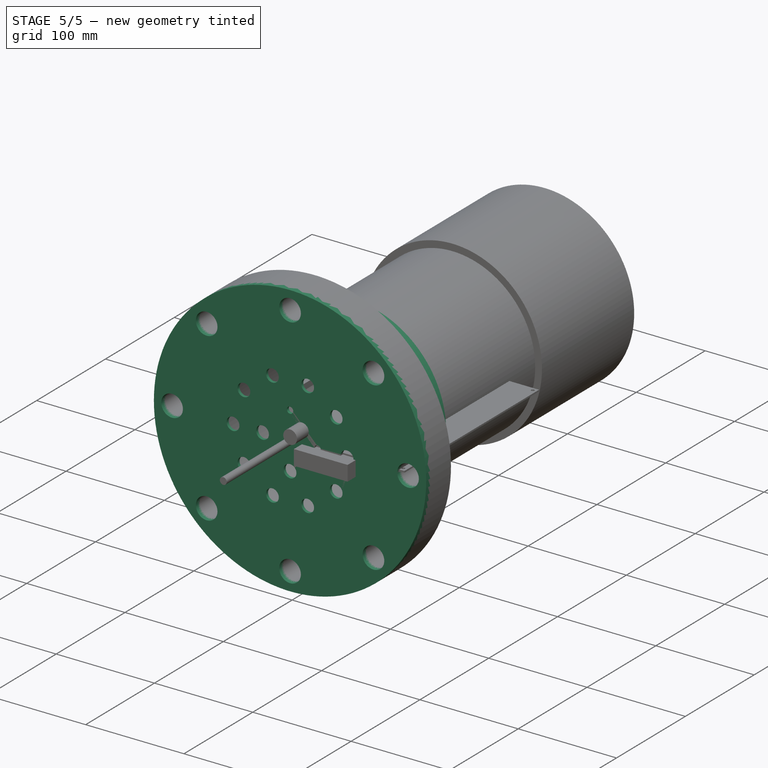
[diagram: stage 5 of 5 — iso view after this stage's code; geometry added in this stage tinted green]
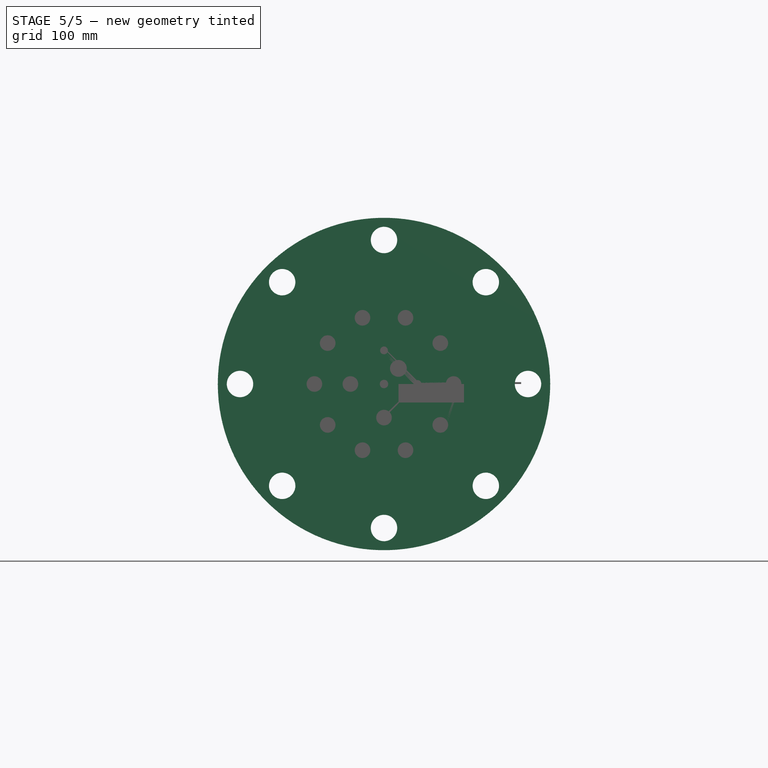
[diagram: stage 5 of 5 — front view after this stage's code; geometry added in this stage tinted green]
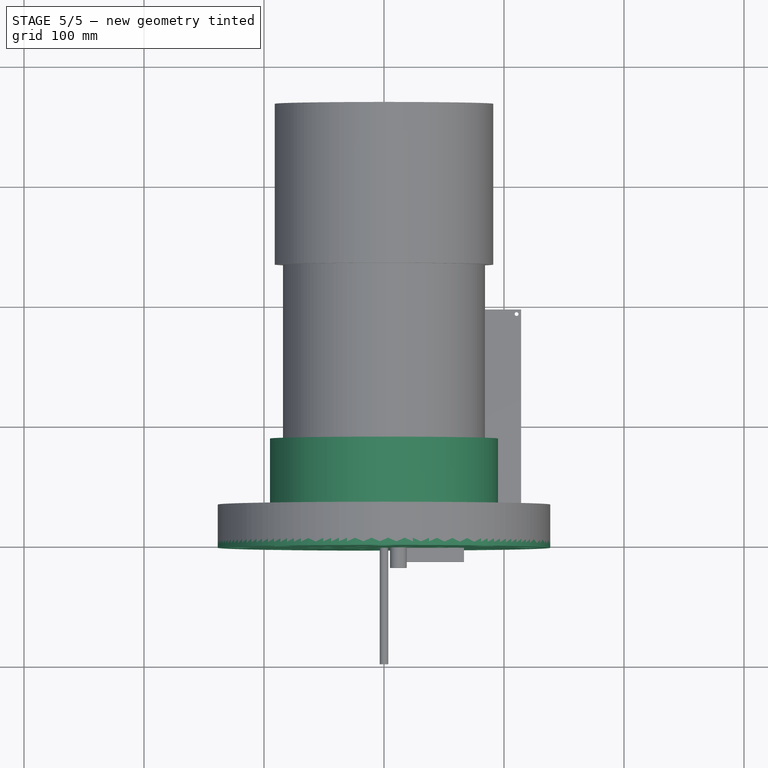
[diagram: stage 5 of 5 — top view after this stage's code; geometry added in this stage tinted green]
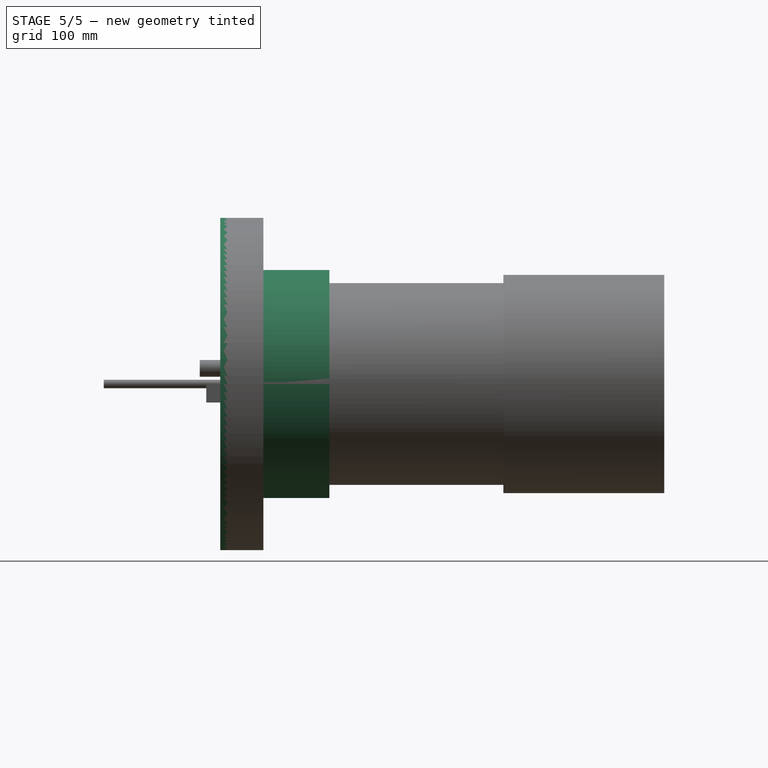
[diagram: stage 5 of 5 — right view after this stage's code; geometry added in this stage tinted green]
FEATURE [Sketcher::SketchObject] Sketch
  MapMode = 5
  Placement = pos=(0,0,0) rot=(1,0,0;1.5708rad)
  Support = -> [XZ_Plane]
  sketch-geometry (49):
    g0: Circle CenterX=0 CenterY=0 CenterZ=0 NormalX=0 NormalY=0 NormalZ=1 Radius=138.5
    g1: LineSegment [constr] StartX=-58 StartY=0 StartZ=0 EndX=-17.923 EndY=-55.1613 EndZ=0
    g2: LineSegment [constr] StartX=-17.923 StartY=-55.1613 StartZ=0 EndX=46.923 EndY=-34.0915 EndZ=0
    g3: LineSegment [constr] StartX=46.923 StartY=-34.0915 StartZ=0 EndX=46.923 EndY=34.0915 EndZ=0
    g4: LineSegment [constr] StartX=46.923 StartY=34.0915 StartZ=0 EndX=-17.923 EndY=55.1613 EndZ=0
    g5: LineSegment [constr] StartX=-17.923 StartY=55.1613 StartZ=0 EndX=-58 EndY=0 EndZ=0
    g6: Circle [constr] CenterX=0 CenterY=0 CenterZ=0 NormalX=0 NormalY=0 NormalZ=1 Radius=58
    g7: LineSegment [constr] StartX=58 StartY=0 StartZ=0 EndX=17.923 EndY=55.1613 EndZ=0
    g8: LineSegment [constr] StartX=17.923 StartY=55.1613 StartZ=0 EndX=-46.923 EndY=34.0915 EndZ=0
    g9: LineSegment [constr] StartX=-46.923 StartY=34.0915 StartZ=0 EndX=-46.923 EndY=-34.0915 EndZ=0
    g10: LineSegment [constr] StartX=-46.923 StartY=-34.0915 StartZ=0 EndX=17.923 EndY=-55.1613 EndZ=0
    g11: LineSegment [constr] StartX=17.923 StartY=-55.1613 StartZ=0 EndX=58 EndY=0 EndZ=0
    g12: Circle [constr] CenterX=0 CenterY=0 CenterZ=0 NormalX=0 NormalY=0 NormalZ=1 Radius=58
    g13: LineSegment [constr] StartX=-28 StartY=0 StartZ=0 EndX=0 EndY=-28 EndZ=0
    g14: LineSegment [constr] StartX=0 StartY=-28 StartZ=0 EndX=28 EndY=0 EndZ=0
    g15: LineSegment [constr] StartX=28 StartY=0 StartZ=0 EndX=0 EndY=28 EndZ=0
    g16: LineSegment [constr] StartX=0 StartY=28 StartZ=0 EndX=-28 EndY=0 EndZ=0
    g17: Circle [constr] CenterX=0 CenterY=0 CenterZ=0 NormalX=0 NormalY=0 NormalZ=1 Radius=28
    g18: LineSegment [constr] StartX=-120 StartY=0 StartZ=0 EndX=-84.8528 EndY=-84.8528 EndZ=0
    g19: LineSegment [constr] StartX=-84.8528 StartY=-84.8528 StartZ=0 EndX=0 EndY=-120 EndZ=0
    g20: LineSegment [constr] StartX=0 StartY=-120 StartZ=0 EndX=84.8528 EndY=-84.8528 EndZ=0
    g21: LineSegment [constr] StartX=84.8528 StartY=-84.8528 StartZ=0 EndX=120 EndY=0 EndZ=0
    g22: LineSegment [constr] StartX=120 StartY=0 StartZ=0 EndX=84.8528 EndY=84.8528 EndZ=0
    g23: LineSegment [constr] StartX=84.8528 StartY=84.8528 StartZ=0 EndX=0 EndY=120 EndZ=0
    g24: LineSegment [constr] StartX=0 StartY=120 StartZ=0 EndX=-84.8528 EndY=84.8528 EndZ=0
    g25: LineSegment [constr] StartX=-84.8528 StartY=84.8528 StartZ=0 EndX=-120 EndY=0 EndZ=0
    g26: Circle [constr] CenterX=0 CenterY=0 CenterZ=0 NormalX=0 NormalY=0 NormalZ=1 Radius=120
    g27: Circle CenterX=-120 CenterY=0 CenterZ=0 NormalX=0 NormalY=0 NormalZ=1 Radius=11
    g28: Circle CenterX=-84.8528 CenterY=84.8528 CenterZ=0 NormalX=0 NormalY=0 NormalZ=1 Radius=11
    g29: Circle CenterX=0 CenterY=120 CenterZ=0 NormalX=0 NormalY=0 NormalZ=1 Radius=11
    g30: Circle CenterX=84.8528 CenterY=84.8528 CenterZ=0 NormalX=0 NormalY=0 NormalZ=1 Radius=11
    g31: Circle CenterX=120 CenterY=0 CenterZ=0 NormalX=0 NormalY=0 NormalZ=1 Radius=11
    g32: Circle CenterX=84.8528 CenterY=-84.8528 CenterZ=0 NormalX=0 NormalY=0 NormalZ=1 Radius=11
    g33: Circle CenterX=0 CenterY=-120 CenterZ=0 NormalX=0 NormalY=0 NormalZ=1 Radius=11
    g34: Circle CenterX=-84.8528 CenterY=-84.8528 CenterZ=0 NormalX=0 NormalY=0 NormalZ=1 Radius=11
    g35: Circle CenterX=-58 CenterY=0 CenterZ=0 NormalX=0 NormalY=0 NormalZ=1 Radius=6.5
    g36: Circle CenterX=-28 CenterY=0 CenterZ=0 NormalX=0 NormalY=0 NormalZ=1 Radius=6.5
    g37: Circle CenterX=0 CenterY=-28 CenterZ=0 NormalX=0 NormalY=0 NormalZ=1 Radius=6.5
    g38: Circle CenterX=28 CenterY=0 CenterZ=0 NormalX=0 NormalY=0 NormalZ=1 Radius=3.25
    g39: Circle CenterX=0 CenterY=28 CenterZ=0 NormalX=0 NormalY=0 NormalZ=1 Radius=3.25
    g40: Circle CenterX=-17.923 CenterY=55.1613 CenterZ=0 NormalX=0 NormalY=0 NormalZ=1 Radius=6.5
    g41: Circle CenterX=-46.923 CenterY=34.0915 CenterZ=0 NormalX=0 NormalY=0 NormalZ=1 Radius=6.5
    g42: Circle CenterX=-46.923 CenterY=-34.0915 CenterZ=0 NormalX=0 NormalY=0 NormalZ=1 Radius=6.5
    g43: Circle CenterX=-17.923 CenterY=-55.1613 CenterZ=0 NormalX=0 NormalY=0 NormalZ=1 Radius=6.5
    g44: Circle CenterX=17.923 CenterY=-55.1613 CenterZ=0 NormalX=0 NormalY=0 NormalZ=1 Radius=6.5
    g45: Circle CenterX=46.923 CenterY=-34.0915 CenterZ=0 NormalX=0 NormalY=0 NormalZ=1 Radius=6.5
    g46: Circle CenterX=58 CenterY=0 CenterZ=0 NormalX=0 NormalY=0 NormalZ=1 Radius=6.5
    g47: Circle CenterX=46.923 CenterY=34.0915 CenterZ=0 NormalX=0 NormalY=0 NormalZ=1 Radius=6.5
    g48: Circle CenterX=17.923 CenterY=55.1613 CenterZ=0 NormalX=0 NormalY=0 NormalZ=1 Radius=6.5
  constraints (108):
    c: Coincident(g0,g-1)
    c: Radius(g0) = 138.5
    c: Coincident(g1,g2)
    c: Coincident(g2,g3)
    c: Coincident(g3,g4)
    c: Coincident(g4,g5)
    c: Coincident(g5,g1)
    c: Equal(g1, g2-g5) x4
    c: PointOnObject(g1,g6)
    c: PointOnObject(g2,g6)
    c: PointOnObject(g3,g6)
    c: PointOnObject(g4,g6)
    c: PointOnObject(g5,g6)
    c: Coincident(g6,g-1)
    c: PointOnObject(g1,g-1)
    c: Coincident(g7,g8)
    c: Coincident(g8,g9)
    c: Coincident(g9,g10)
    c: Coincident(g10,g11)
    c: Coincident(g11,g7)
    c: Equal(g7, g8-g11) x4
    c: PointOnObject(g7,g12)
    c: PointOnObject(g8,g12)
    c: PointOnObject(g9,g12)
    c: PointOnObject(g10,g12)
    c: PointOnObject(g11,g12)
    c: Coincident(g12,g-1)
    c: PointOnObject(g7,g-1)
    c: Equal(g12,g6)
    c: Radius(g6) = 58
    c: Coincident(g13,g14)
    c: Coincident(g14,g15)
    c: Coincident(g15,g16)
    c: Coincident(g16,g13)
    c: Equal(g13,g14)
    c: Equal(g13,g15)
    c: Equal(g13,g16)
    c: PointOnObject(g13,g17)
    c: PointOnObject(g14,g17)
    c: PointOnObject(g15,g17)
    c: PointOnObject(g16,g17)
    c: Coincident(g17,g-1)
    c: PointOnObject(g13,g-1)
    c: Radius(g17) = 28
    c: Coincident(g18,g19)
    c: Coincident(g19,g20)
    c: Coincident(g20,g21)
    c: Coincident(g21,g22)
    c: Coincident(g22,g23)
    c: Coincident(g23,g24)
    c: Coincident(g24,g25)
    c: Coincident(g25,g18)
    c: Equal(g18, g19-g25) x7
    c: PointOnObject(g18,g26)
    c: PointOnObject(g19,g26)
    c: PointOnObject(g20,g26)
    c: PointOnObject(g21,g26)
    c: PointOnObject(g22,g26)
    c: PointOnObject(g23,g26)
    c: PointOnObject(g24,g26)
    c: PointOnObject(g25,g26)
    c: PointOnObject(g18,g-1)
    c: Radius(g26) = 120
    c: Coincident(g26,g-1)
    c: Coincident(g27,g18)
    c: Radius(g27) = 11
    c: Coincident(g28,g24)
    c: Coincident(g29,g23)
    c: Coincident(g30,g22)
    c: Coincident(g31,g21)
    c: Coincident(g32,g20)
    c: Coincident(g33,g19)
    c: Coincident(g34,g18)
    c: Equal(g34,g33)
    c: Equal(g33,g32)
    c: Equal(g32,g31)
    c: Equal(g31,g30)
    c: Equal(g30,g29)
    c: Equal(g29,g28)
    c: Equal(g28,g27)
    c: Coincident(g35,g1)
    c: Coincident(g36,g13)
    c: Coincident(g37,g13)
    c: Coincident(g38,g14)
    c: Coincident(g39,g15)
    c: Coincident(g40,g4)
    c: Coincident(g41,g8)
    c: Coincident(g42,g9)
    c: Coincident(g43,g1)
    c: Coincident(g44,g10)
    c: Coincident(g45,g2)
    c: Coincident(g46,g7)
    c: Coincident(g47,g3)
    c: Coincident(g48,g7)
    c: Equal(g41,g40)
    c: Equal(g40,g48)
    c: Equal(g48,g47)
    c: Equal(g47,g46)
    c: Equal(g46,g45)
    c: Equal(g45,g44)
    c: Equal(g44,g43)
    c: Equal(g43,g42)
    c: Equal(g42,g35)
    c: Equal(g35,g36)
    c: Equal(g36,g37)
    c: Radius(g41) = 6.5
    c: Equal(g38,g39)
    c: Radius(g39) = 3.25
FEATURE [PartDesign::Pad] Pad
  Length = 3
  Length2 = 100
  Placement = pos=(0,0,0) rot=(1,0,0;1.5708rad)
  Profile = -> Sketch
  Type = 0
FEATURE [PartDesign::Body] Body
  Model = -> [Sketch,Pad]
  Origin = -> BodyOrigin
  Tip = -> Pad
FEATURE [Part::Feature] Part__Feature  label="SP13"
  Placement = pos=(-28,6.56,0) rot=(1,0,0;1.5708rad)
  shape: bbox 20 x 23 x 18 mm, 53 faces (baked)
FEATURE [Part::AttachableObjectPython] Clone  label="Clone of SP13"  # Draft clone (typed FeaturePython)
  AttacherType = Attacher::AttachEngine3D
  Objects = -> [Part__Feature]
  Placement = pos=(-58,6.56,0) rot=(1,0,0;1.5708rad)
  Scale = (1,1,1)
FEATURE [Part::AttachableObjectPython] Clone001  label="Clone of SP014"  # Draft clone (typed FeaturePython)
  AttacherType = Attacher::AttachEngine3D
  Objects = -> [Part__Feature]
  Placement = pos=(-47,6.56,34) rot=(1,0,0;1.5708rad)
  Scale = (1,1,1)
FEATURE [Part::AttachableObjectPython] Clone002  label="Clone of SP015"  # Draft clone (typed FeaturePython)
  AttacherType = Attacher::AttachEngine3D
  Objects = -> [Part__Feature]
  Placement = pos=(-18,6.56,55.2) rot=(1,0,0;1.5708rad)
  Scale = (1,1,1)
FEATURE [Part::AttachableObjectPython] Clone003  label="Clone of SP016"  # Draft clone (typed FeaturePython)
  AttacherType = Attacher::AttachEngine3D
  Objects = -> [Part__Feature]
  Placement = pos=(17.9,6.56,55) rot=(1,0,0;1.5708rad)
  Scale = (1,1,1)
FEATURE [Part::AttachableObjectPython] Clone004  label="Clone of SP017"  # Draft clone (typed FeaturePython)
  AttacherType = Attacher::AttachEngine3D
  Objects = -> [Part__Feature]
  Placement = pos=(47,6.56,34) rot=(1,0,0;1.5708rad)
  Scale = (1,1,1)
FEATURE [Part::AttachableObjectPython] Clone005  label="Clone of SP018"  # Draft clone (typed FeaturePython)
  AttacherType = Attacher::AttachEngine3D
  Objects = -> [Part__Feature]
  Placement = pos=(58,6.56,0) rot=(1,0,0;1.5708rad)
  Scale = (1,1,1)
FEATURE [Part::AttachableObjectPython] Clone006  label="Clone of SP019"  # Draft clone (typed FeaturePython)
  AttacherType = Attacher::AttachEngine3D
  Objects = -> [Part__Feature]
  Placement = pos=(47,6.56,-34) rot=(1,0,0;1.5708rad)
  Scale = (1,1,1)
FEATURE [Part::AttachableObjectPython] Clone007  label="Clone of SP020"  # Draft clone (typed FeaturePython)
  AttacherType = Attacher::AttachEngine3D
  Objects = -> [Part__Feature]
  Placement = pos=(18,6.56,-55) rot=(1,0,0;1.5708rad)
  Scale = (1,1,1)
FEATURE [Part::AttachableObjectPython] Clone008  label="Clone of SP021"  # Draft clone (typed FeaturePython)
  AttacherType = Attacher::AttachEngine3D
  Objects = -> [Part__Feature]
  Placement = pos=(-17.9,6.56,-55.2) rot=(1,0,0;1.5708rad)
  Scale = (1,1,1)
FEATURE [Part::AttachableObjectPython] Clone009  label="Clone of SP022"  # Draft clone (typed FeaturePython)
  AttacherType = Attacher::AttachEngine3D
  Objects = -> [Part__Feature]
  Placement = pos=(-47,6.56,-34) rot=(1,0,0;1.5708rad)
  Scale = (1,1,1)
FEATURE [App::Part] Part  label="Part Front plate"
  Group = -> [Body,Part__Feature,Clone,Clone001,Clone002,Clone003,Clone004,Clone005,Clone006,Clone007,Clone008,Clone009]
  License = CC BY 3.0
  LicenseURL = http://creativecommons.org/licenses/by/3.0/
  Origin = -> PartOrigin
  Placement = pos=(0,267,0) rot=(0,0,1;3.14159rad)
FEATURE [Sketcher::SketchObject] Sketch002
  MapMode = 5
  Placement = pos=(0,0,0) rot=(1,0,0;1.5708rad)
  Support = -> [XZ_Plane003]
  sketch-geometry (20):
    g0: Circle CenterX=0 CenterY=0 CenterZ=0 NormalX=0 NormalY=0 NormalZ=1 Radius=138.5
    g1: Circle CenterX=0 CenterY=0 CenterZ=0 NormalX=0 NormalY=0 NormalZ=1 Radius=83.5
    g2: LineSegment [constr] StartX=-138.5 StartY=0 StartZ=0 EndX=-83.5 EndY=0 EndZ=0
    g3: Circle CenterX=-120 CenterY=0 CenterZ=0 NormalX=0 NormalY=0 NormalZ=1 Radius=11
    g4: LineSegment [constr] StartX=-120 StartY=0 StartZ=0 EndX=-84.8528 EndY=-84.8528 EndZ=0
    g5: LineSegment [constr] StartX=-84.8528 StartY=-84.8528 StartZ=0 EndX=0 EndY=-120 EndZ=0
    g6: LineSegment [constr] StartX=0 StartY=-120 StartZ=0 EndX=84.8528 EndY=-84.8528 EndZ=0
    g7: LineSegment [constr] StartX=84.8528 StartY=-84.8528 StartZ=0 EndX=120 EndY=0 EndZ=0
    g8: LineSegment [constr] StartX=120 StartY=0 StartZ=0 EndX=84.8528 EndY=84.8528 EndZ=0
    g9: LineSegment [constr] StartX=84.8528 StartY=84.8528 StartZ=0 EndX=0 EndY=120 EndZ=0
    g10: LineSegment [constr] StartX=0 StartY=120 StartZ=0 EndX=-84.8528 EndY=84.8528 EndZ=0
    g11: LineSegment [constr] StartX=-84.8528 StartY=84.8528 StartZ=0 EndX=-120 EndY=0 EndZ=0
    g12: Circle [constr] CenterX=0 CenterY=0 CenterZ=0 NormalX=0 NormalY=0 NormalZ=1 Radius=120
    g13: Circle CenterX=-84.8528 CenterY=84.8528 CenterZ=0 NormalX=0 NormalY=0 NormalZ=1 Radius=11
    g14: Circle CenterX=0 CenterY=120 CenterZ=0 NormalX=0 NormalY=0 NormalZ=1 Radius=11
    g15: Circle CenterX=84.8528 CenterY=84.8528 CenterZ=0 NormalX=0 NormalY=0 NormalZ=1 Radius=11
    g16: Circle CenterX=120 CenterY=0 CenterZ=0 NormalX=0 NormalY=0 NormalZ=1 Radius=11
    g17: Circle CenterX=84.8528 CenterY=-84.8528 CenterZ=0 NormalX=0 NormalY=0 NormalZ=1 Radius=11
    g18: Circle CenterX=0 CenterY=-120 CenterZ=0 NormalX=0 NormalY=0 NormalZ=1 Radius=11
    g19: Circle CenterX=-84.8528 CenterY=-84.8528 CenterZ=0 NormalX=0 NormalY=0 NormalZ=1 Radius=11
  constraints (44):
    c: Coincident(g0,g-1)
    c: Radius(g0) = 138.5
    c: Coincident(g1,g-1)
    c: PointOnObject(g2,g0)
    c: Horizontal(g2)
    c: PointOnObject(g2,g-1)
    c: PointOnObject(g2,g1)
    c: DistanceX(g2,g2) = 55
    c: Radius(g3) = 11
    c: Coincident(g4,g5)
    c: Coincident(g5,g6)
    c: Coincident(g6,g7)
    c: Coincident(g7,g8)
    c: Coincident(g8,g9)
    c: Coincident(g9,g10)
    c: Coincident(g10,g11)
    c: Coincident(g11,g4)
    c: Equal(g4, g5-g11) x7
    c: PointOnObject(g4,g12)
    c: PointOnObject(g5,g12)
    c: PointOnObject(g6,g12)
    c: PointOnObject(g7,g12)
    c: PointOnObject(g8,g12)
    c: PointOnObject(g9,g12)
    c: PointOnObject(g10,g12)
    c: PointOnObject(g11,g12)
    c: Coincident(g12,g-1)
    c: Coincident(g11,g3)
    c: PointOnObject(g3,g-1)
    c: Radius(g12) = 120
    c: Coincident(g13,g10)
    c: Coincident(g14,g9)
    c: Coincident(g15,g8)
    c: Coincident(g16,g7)
    c: Coincident(g17,g6)
    c: Coincident(g18,g5)
    c: Coincident(g19,g4)
    c: Equal(g3,g13)
    c: Equal(g13,g14)
    c: Equal(g14,g15)
    c: Equal(g15,g16)
    c: Equal(g16,g17)
    c: Equal(g17,g18)
    c: Equal(g18,g19)
FEATURE [PartDesign::Pad] Pad001
  Length = 3
  Length2 = 100
  Placement = pos=(0,0,0) rot=(1,0,0;1.5708rad)
  Profile = -> Sketch002
  Reversed = true
  Type = 0
FEATURE [Sketcher::SketchObject] Sketch004
  MapMode = 5
  Placement = pos=(0,33,0) rot=(-1,0,0;1.5708rad)
  Support = -> [Pad002]
  sketch-geometry (1):
    g0: Circle CenterX=0 CenterY=0 CenterZ=0 NormalX=0 NormalY=0 NormalZ=1 Radius=95
  constraints (2):
    c: Coincident(g0,g-1)
    c: Radius(g0) = 95
FEATURE [PartDesign::Pad] Pad003
  BaseFeature = -> Pad002
  Length = 55
  Length2 = 100
  Placement = pos=(0,0,0) rot=(1,0,0;1.5708rad)
  Profile = -> Sketch004
  Type = 0
FEATURE [Sketcher::SketchObject] Sketch005
  MapMode = 5
  Placement = pos=(0,88,0) rot=(-1,0,0;1.5708rad)
  Support = -> [Pad003]
  sketch-geometry (1):
    g0: Circle CenterX=0 CenterY=0 CenterZ=0 NormalX=0 NormalY=0 NormalZ=1 Radius=84.1375
  constraints (2):
    c: Coincident(g0,g-1)
    c: Radius(g0) = 84.1375
FEATURE [PartDesign::Pocket] Pocket
  BaseFeature = -> Pad003
  Length = 5
  Placement = pos=(0,0,0) rot=(1,0,0;1.5708rad)
  Profile = -> Sketch005
  Type = 1
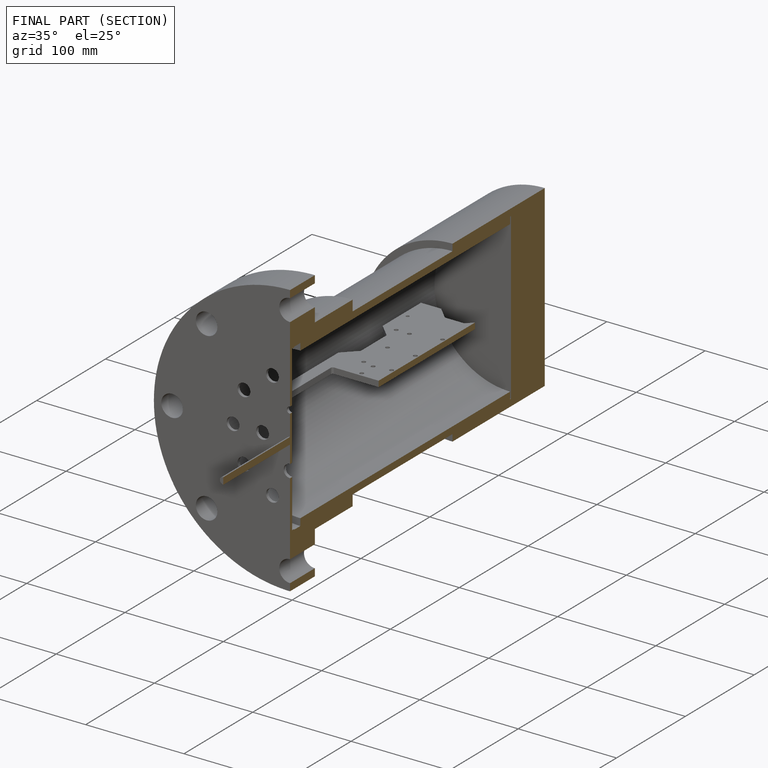
[diagram: finished part — half-section view (interior)]
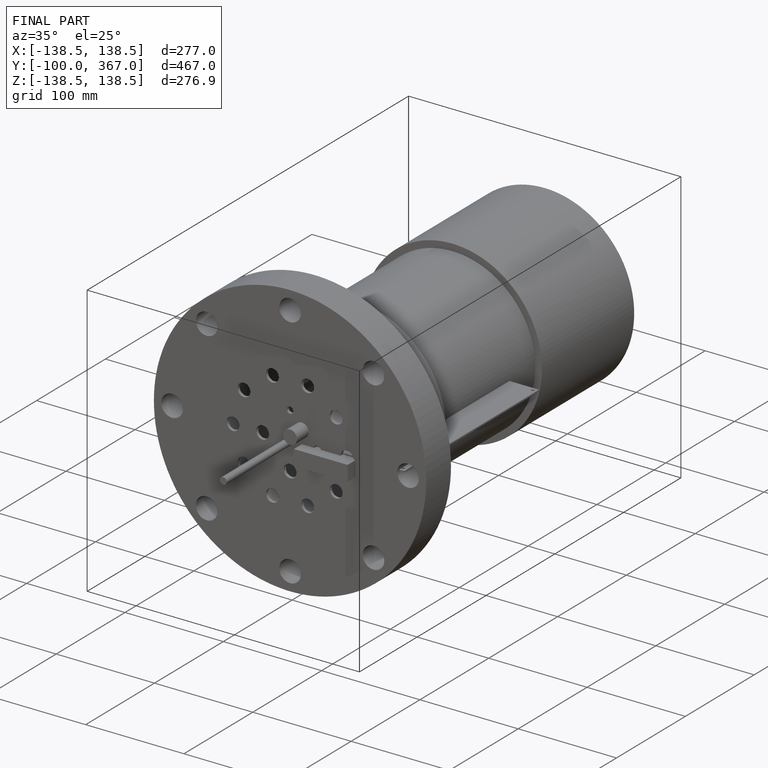
[diagram: finished part — iso view with bounding-box wireframe]
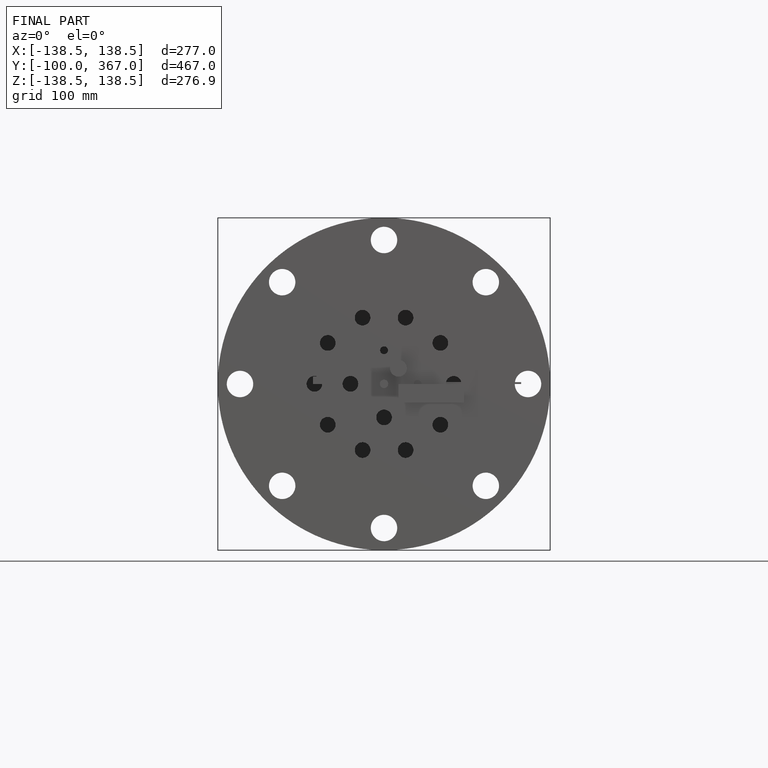
[diagram: finished part — front view with bounding-box wireframe]
